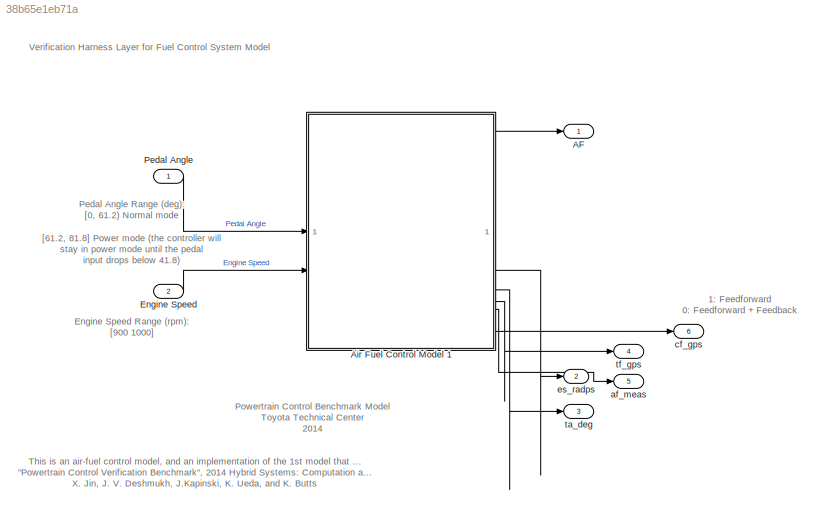
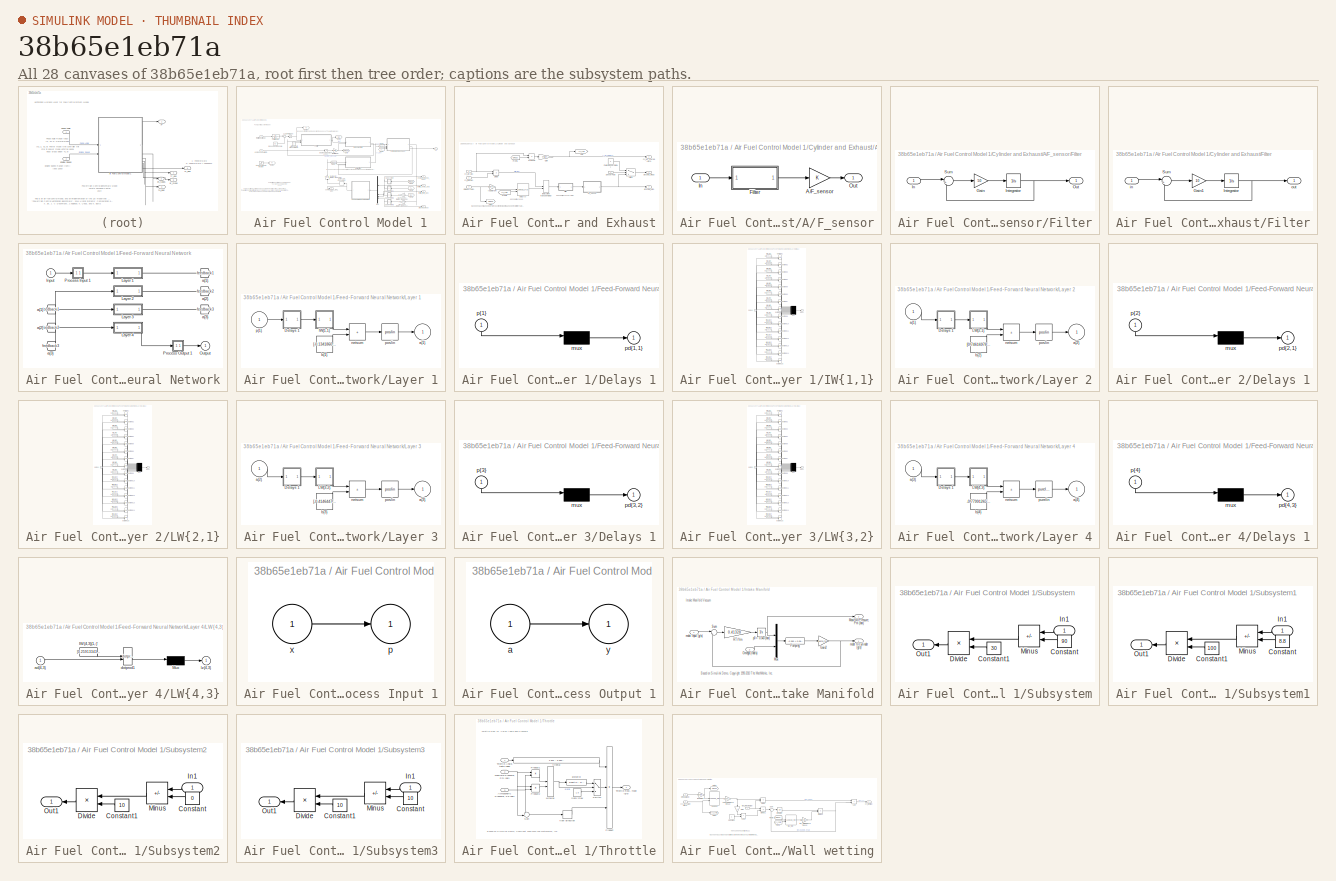
[diagram: thumbnail index - all 28 canvases of the model, root first then tree order]
MODEL slx_38b65e1eb71a
KIND model
CONFIG AbsTol = auto
CONFIG EnableMultiTasking = off
CONFIG FixedStep = auto
CONFIG MaxStep = 0.01
CONFIG MinStep = auto
CONFIG RelTol = 1e-3
CONFIG SampleTimeConstraint = Unconstrained
CONFIG Solver = ode15s
CONFIG SolverMode = SingleTasking
CONFIG SolverName = ode15s
CONFIG StartTime = 0.0
CONFIG StopTime = T
BLOCK [Outport] AF
  VectorParamsAs1DForOutWhenUnconnected = off
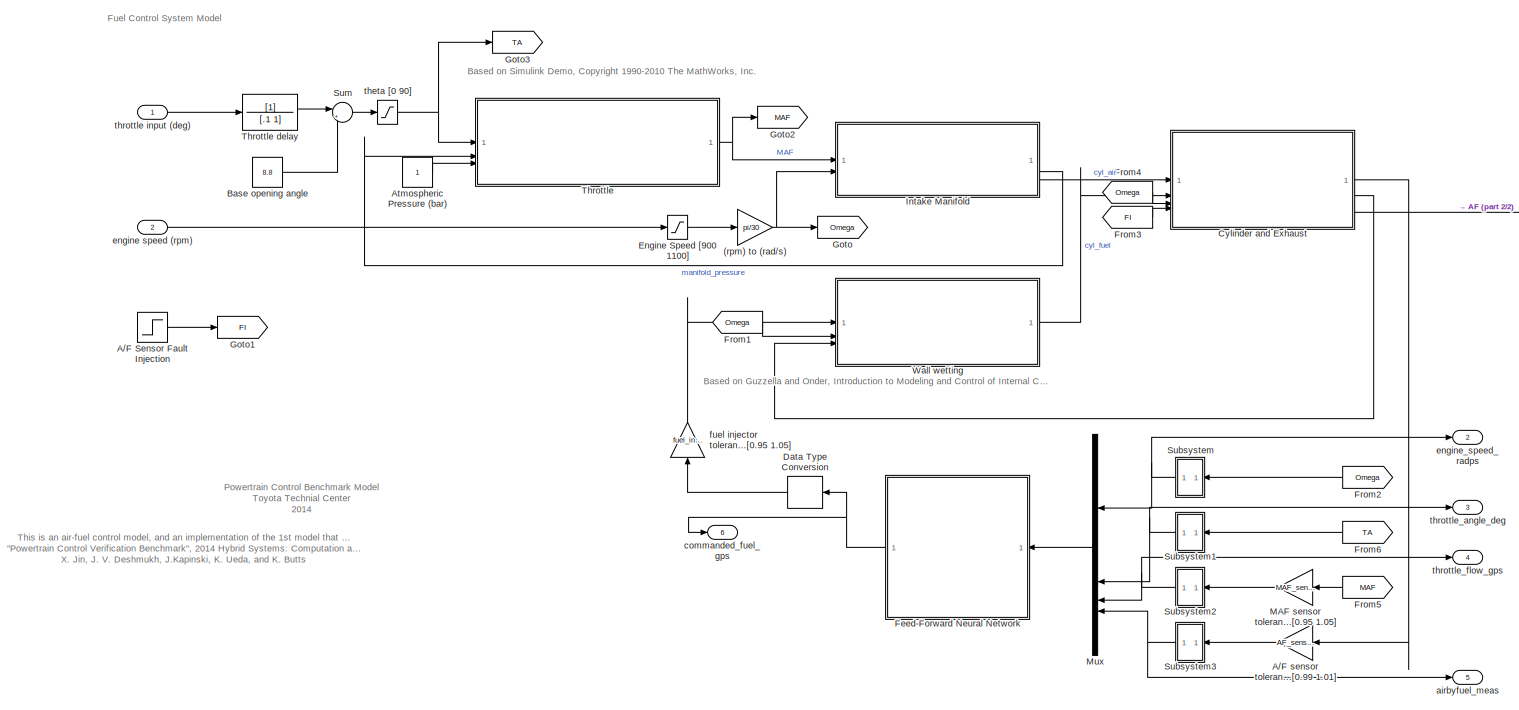
[diagram: Air Fuel Control Model 1 - part 1/2, most of the canvas]
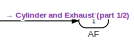
[diagram: Air Fuel Control Model 1 - part 2/2, top right region]
BLOCK [SubSystem] Air Fuel Control Model 1
  Priority = 1
  TreatAsAtomicUnit = on
BLOCK [Gain] Air Fuel Control Model 1/(rpm) to (rad//s)
  Gain = pi/30
BLOCK [Step] Air Fuel Control Model 1/A//F Sensor Fault Injection
  AttributesFormatString = 1: Failure\n0: Normal
  SampleTime = 0
  Time = fault_time
BLOCK [Gain] Air Fuel Control Model 1/A//F sensor tolerance [0.99 1.01]
  Gain = AF_sensor_tol
BLOCK [Outport] Air Fuel Control Model 1/AF
  VectorParamsAs1DForOutWhenUnconnected = off
BLOCK [Constant] Air Fuel Control Model 1/Atmospheric Pressure (bar)
BLOCK [Constant] Air Fuel Control Model 1/Base opening angle
  Value = 8.8
BLOCK [SubSystem] Air Fuel Control Model 1/Cylinder and Exhaust
BLOCK [SubSystem] Air Fuel Control Model 1/Cylinder and Exhaust/A//F_sensor
BLOCK [Gain] Air Fuel Control Model 1/Cylinder and Exhaust/A//F_sensor/A//F_sensor
  OutDataTypeStr = double
BLOCK [SubSystem] Air Fuel Control Model 1/Cylinder and Exhaust/A//F_sensor/Filter
BLOCK [Gain] Air Fuel Control Model 1/Cylinder and Exhaust/A//F_sensor/Filter/Gain
  Gain = 50
BLOCK [Inport] Air Fuel Control Model 1/Cylinder and Exhaust/A//F_sensor/Filter/In
BLOCK [Integrator] Air Fuel Control Model 1/Cylinder and Exhaust/A//F_sensor/Filter/Integrator
  InitialCondition = 14.7
BLOCK [Outport] Air Fuel Control Model 1/Cylinder and Exhaust/A//F_sensor/Filter/Out
  VectorParamsAs1DForOutWhenUnconnected = off
BLOCK [Sum] Air Fuel Control Model 1/Cylinder and Exhaust/A//F_sensor/Filter/Sum
  Inputs = |+-
BLOCK [Inport] Air Fuel Control Model 1/Cylinder and Exhaust/A//F_sensor/In
BLOCK [Outport] Air Fuel Control Model 1/Cylinder and Exhaust/A//F_sensor/Out
  VectorParamsAs1DForOutWhenUnconnected = off
BLOCK [Product] Air Fuel Control Model 1/Cylinder and Exhaust/Divide
  Inputs = */
BLOCK [Constant] Air Fuel Control Model 1/Cylinder and Exhaust/FaultySensorOutput
  Value = -1
BLOCK [SubSystem] Air Fuel Control Model 1/Cylinder and Exhaust/Filter
BLOCK [Gain] Air Fuel Control Model 1/Cylinder and Exhaust/Filter/Gain1
  Gain = 10
BLOCK [Integrator] Air Fuel Control Model 1/Cylinder and Exhaust/Filter/Integrator
  InitialCondition = 14.7
BLOCK [Sum] Air Fuel Control Model 1/Cylinder and Exhaust/Filter/Sum
  Inputs = |+-
BLOCK [Inport] Air Fuel Control Model 1/Cylinder and Exhaust/Filter/in
BLOCK [Outport] Air Fuel Control Model 1/Cylinder and Exhaust/Filter/out
  VectorParamsAs1DForOutWhenUnconnected = off
BLOCK [From] Air Fuel Control Model 1/Cylinder and Exhaust/From1
  GotoTag = Omega
BLOCK [From] Air Fuel Control Model 1/Cylinder and Exhaust/From3
  GotoTag = cyl_chrg
BLOCK [Gain] Air Fuel Control Model 1/Cylinder and Exhaust/Gain
  Gain = 4*pi/4
BLOCK [Goto] Air Fuel Control Model 1/Cylinder and Exhaust/Goto
  GotoTag = cyl_chrg
BLOCK [Goto] Air Fuel Control Model 1/Cylinder and Exhaust/Goto1
  GotoTag = Omega
BLOCK [Inport] Air Fuel Control Model 1/Cylinder and Exhaust/Omega (rad//s)
  Port = 3
BLOCK [Product] Air Fuel Control Model 1/Cylinder and Exhaust/Product1
  Inputs = */
  RndMeth = Zero
BLOCK [Inport] Air Fuel Control Model 1/Cylinder and Exhaust/SensorFault
  Port = 4
BLOCK [Switch] Air Fuel Control Model 1/Cylinder and Exhaust/Switch
  InputSameDT = off
  SaturateOnIntegerOverflow = off
  Threshold = 0.5
BLOCK [Outport] Air Fuel Control Model 1/Cylinder and Exhaust/airbyfue_meas
  VectorParamsAs1DForOutWhenUnconnected = off
BLOCK [Outport] Air Fuel Control Model 1/Cylinder and Exhaust/airbyfuel_mon 
  Port = 3
  VectorParamsAs1DForOutWhenUnconnected = off
BLOCK [Inport] Air Fuel Control Model 1/Cylinder and Exhaust/cyl_air (g//s)
BLOCK [Outport] Air Fuel Control Model 1/Cylinder and Exhaust/cyl_air_charge (g//cyl)
  Port = 2
  VectorParamsAs1DForOutWhenUnconnected = off
BLOCK [Inport] Air Fuel Control Model 1/Cylinder and Exhaust/cyl_fuel (g//s)
  Port = 2
BLOCK [Lookup_n-D] Air Fuel Control Model 1/Cylinder and Exhaust/delay (s)
  BreakpointsForDimension1 = [800,1000,1500,2000,3000]
  BreakpointsForDimension2 = [0.05,0.15,0.2,0.25]
  InputPortMap = u0,u1
  RndMeth = Simplest
  Table = reshape([0.8,0.6,0.4,0.3,0.2,0.4,0.3,0.2,0.2,0.2,0.3,0.25,0.2,0.2,0.2,0.25,0.2,0.2,0.2,0.2],5,4)
  UseLastTableValue = on
BLOCK [VariableTransportDelay] Air Fuel Control Model 1/Cylinder and Exhaust/fuel system transport delay
  InitialOutput = 14.7
  MaximumDelay = 10
  MaximumPoints = 20480
  VariableDelayType = Variable transport delay
BLOCK [Gain] Air Fuel Control Model 1/Cylinder and Exhaust/rad//s to rpm
  Gain = 60/(2*pi)
BLOCK [DataTypeConversion] Air Fuel Control Model 1/Data Type Conversion
  OutDataTypeStr = double
  RndMeth = Floor
  SaturateOnIntegerOverflow = off
BLOCK [Saturate] Air Fuel Control Model 1/Engine Speed [900 1100]
  LowerLimit = 900
  NameLocation = top
  UpperLimit = 1100
BLOCK [SubSystem] Air Fuel Control Model 1/Feed-Forward Neural Network
BLOCK [From] Air Fuel Control Model 1/Feed-Forward Neural Network/ a{1} 
  GotoTag = feedback1
BLOCK [From] Air Fuel Control Model 1/Feed-Forward Neural Network/ a{2} 
  GotoTag = feedback2
BLOCK [From] Air Fuel Control Model 1/Feed-Forward Neural Network/ a{3} 
  GotoTag = feedback3
BLOCK [Inport] Air Fuel Control Model 1/Feed-Forward Neural Network/Input
  PortDimensions = 4
BLOCK [SubSystem] Air Fuel Control Model 1/Feed-Forward Neural Network/Layer 1
BLOCK [SubSystem] Air Fuel Control Model 1/Feed-Forward Neural Network/Layer 1/Delays 1
BLOCK [Mux] Air Fuel Control Model 1/Feed-Forward Neural Network/Layer 1/Delays 1/mux
  Inputs = 1
BLOCK [Outport] Air Fuel Control Model 1/Feed-Forward Neural Network/Layer 1/Delays 1/pd{1,1}
BLOCK [Inport] Air Fuel Control Model 1/Feed-Forward Neural Network/Layer 1/Delays 1/p{1}
  NameLocation = left
  PortDimensions = 4
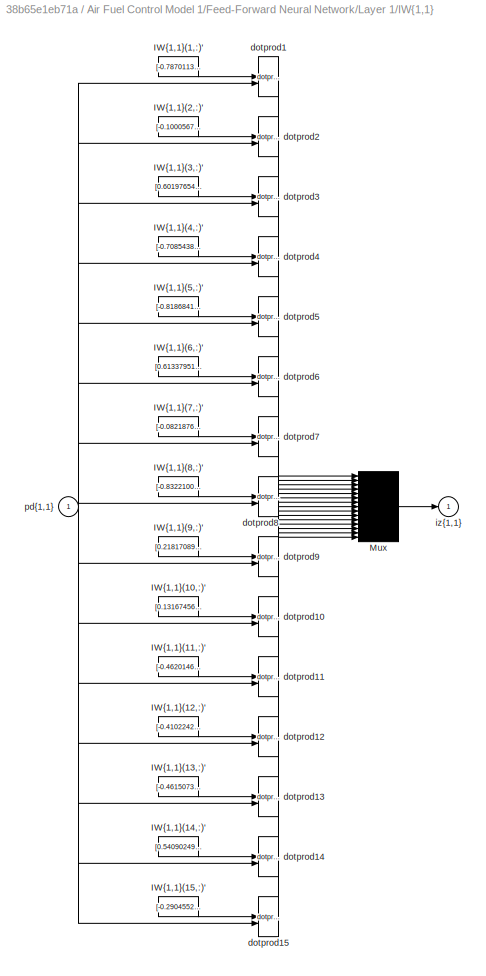
BLOCK [SubSystem] Air Fuel Control Model 1/Feed-Forward Neural Network/Layer 1/IW{1,1}
BLOCK [Constant] Air Fuel Control Model 1/Feed-Forward Neural Network/Layer 1/IW{1,1}/IW{1,1}(1,:)'
  Value = [-0.78701133612833729102931101806461811065673828125;0.4562125433538788410459119404549710452556610107421875;0.103443961303550491237501773866824805736541748046875;-0.87090975855816576967072251136414706707000732421875]
BLOCK [Constant] Air Fuel Control Model 1/Feed-Forward Neural Network/Layer 1/IW{1,1}/IW{1,1}(10,:)'
  Value = [0.1316745698608274839358500685193575918674468994140625;-0.590260013532426963678290121606551110744476318359375;-0.3998189095753179600478688371367752552032470703125;-0.5365704410840212990052577879396267235279083251953125]
BLOCK [Constant] Air Fuel Control Model 1/Feed-Forward Neural Network/Layer 1/IW{1,1}/IW{1,1}(11,:)'
  Value = [-0.462014681196543097740914163296110928058624267578125;0.51133904652220307784915576121420599520206451416015625;-0.66879769313657089213620565715245902538299560546875;-0.6467322154811749879144144870224408805370330810546875]
BLOCK [Constant] Air Fuel Control Model 1/Feed-Forward Neural Network/Layer 1/IW{1,1}/IW{1,1}(12,:)'
  Value = [-0.410224207999659806755943236566963605582714080810546875;0.70720353904919119880645439479849301278591156005859375;0.80645530625370087651759831715025939047336578369140625;-0.267408894004542208033825545498984865844249725341796875]
BLOCK [Constant] Air Fuel Control Model 1/Feed-Forward Neural Network/Layer 1/IW{1,1}/IW{1,1}(13,:)'
  Value = [-0.46150739320623734851523067845846526324748992919921875;-0.56246161152367613045299776786123402416706085205078125;0.1440316457686673101701302357469103299081325531005859375;0.0717413994341347949212917001204914413392543792724609375]
BLOCK [Constant] Air Fuel Control Model 1/Feed-Forward Neural Network/Layer 1/IW{1,1}/IW{1,1}(14,:)'
  Value = [0.540902498896305150566377051291055977344512939453125;-0.3946687621098747822401264784275554120540618896484375;-0.828527723309283370412003932869993150234222412109375;-0.26092162053918865893820111523382365703582763671875]
BLOCK [Constant] Air Fuel Control Model 1/Feed-Forward Neural Network/Layer 1/IW{1,1}/IW{1,1}(15,:)'
  Value = [-0.2904552992418854007183881549281068146228790283203125;-0.4042862767652850575217371442704461514949798583984375;0.601613960576170114791239029727876186370849609375;-0.7227324066346338948818583958200179040431976318359375]
BLOCK [Constant] Air Fuel Control Model 1/Feed-Forward Neural Network/Layer 1/IW{1,1}/IW{1,1}(2,:)'
  Value = [-0.100056771915986331134007514265249483287334442138671875;0.10714570814939804177523541284244856797158718109130859375;0.307562614266350176084330314552062191069126129150390625;-0.2237044110136652275144797386019490659236907958984375]
BLOCK [Constant] Air Fuel Control Model 1/Feed-Forward Neural Network/Layer 1/IW{1,1}/IW{1,1}(3,:)'
  Value = [0.60197654953174861702791531570255756378173828125;-0.51415814467490594807941306498833000659942626953125;0.5874340640427975213100353357731364667415618896484375;0.104830605847380631256982042032177560031414031982421875]
BLOCK [Constant] Air Fuel Control Model 1/Feed-Forward Neural Network/Layer 1/IW{1,1}/IW{1,1}(4,:)'
  Value = [-0.70854381198763716209754193187109194695949554443359375;-0.08015982054196145456526068073799251578748226165771484375;-0.309013340172062000998920439087669365108013153076171875;0.365718269679543794836718006990849971771240234375]
BLOCK [Constant] Air Fuel Control Model 1/Feed-Forward Neural Network/Layer 1/IW{1,1}/IW{1,1}(5,:)'
  Value = [-0.818684130507549401301048419554717838764190673828125;-0.1035428848227202269782765142736025154590606689453125;-0.5814838066046359443816982093267142772674560546875;-0.0206918929987935928949127628584392368793487548828125]
BLOCK [Constant] Air Fuel Control Model 1/Feed-Forward Neural Network/Layer 1/IW{1,1}/IW{1,1}(6,:)'
  Value = [0.613379519958239693977475326391868293285369873046875;0.1853513210456353699218112751623266376554965972900390625;0.59639818288416257541229015259887091815471649169921875;-0.57312054050384142467322590164258144795894622802734375]
BLOCK [Constant] Air Fuel Control Model 1/Feed-Forward Neural Network/Layer 1/IW{1,1}/IW{1,1}(7,:)'
  Value = [-0.0821876544681365839295494879479520022869110107421875;-0.924648825964105025576600382919423282146453857421875;-0.97162497108685652591475445660762488842010498046875;-0.2143981786704600711601642615278251469135284423828125]
BLOCK [Constant] Air Fuel Control Model 1/Feed-Forward Neural Network/Layer 1/IW{1,1}/IW{1,1}(8,:)'
  Value = [-0.8322100781014512005384631265769712626934051513671875;0.756808648165334663104886203655041754245758056640625;-0.5740829185972007309146647457964718341827392578125;0.319655064111825593098359377108863554894924163818359375]
BLOCK [Constant] Air Fuel Control Model 1/Feed-Forward Neural Network/Layer 1/IW{1,1}/IW{1,1}(9,:)'
  Value = [0.218170897994887369453209657876868732273578643798828125;-0.399711730374496643225512571007129736244678497314453125;0.509493936183935236527986489818431437015533447265625;0.387891270540356603024889636799343861639499664306640625]
BLOCK [Mux] Air Fuel Control Model 1/Feed-Forward Neural Network/Layer 1/IW{1,1}/Mux
  Inputs = 15
BLOCK [Reference] Air Fuel Control Model 1/Feed-Forward Neural Network/Layer 1/IW{1,1}/dotprod1  REF=neural/Weight Functions/dotprod
  SourceBlock = neural/Weight Functions/dotprod
  SourceType = DOTPROD
BLOCK [Reference] Air Fuel Control Model 1/Feed-Forward Neural Network/Layer 1/IW{1,1}/dotprod10  REF=neural/Weight Functions/dotprod
  SourceBlock = neural/Weight Functions/dotprod
  SourceType = DOTPROD
BLOCK [Reference] Air Fuel Control Model 1/Feed-Forward Neural Network/Layer 1/IW{1,1}/dotprod11  REF=neural/Weight Functions/dotprod
  SourceBlock = neural/Weight Functions/dotprod
  SourceType = DOTPROD
BLOCK [Reference] Air Fuel Control Model 1/Feed-Forward Neural Network/Layer 1/IW{1,1}/dotprod12  REF=neural/Weight Functions/dotprod
  SourceBlock = neural/Weight Functions/dotprod
  SourceType = DOTPROD
BLOCK [Reference] Air Fuel Control Model 1/Feed-Forward Neural Network/Layer 1/IW{1,1}/dotprod13  REF=neural/Weight Functions/dotprod
  SourceBlock = neural/Weight Functions/dotprod
  SourceType = DOTPROD
BLOCK [Reference] Air Fuel Control Model 1/Feed-Forward Neural Network/Layer 1/IW{1,1}/dotprod14  REF=neural/Weight Functions/dotprod
  SourceBlock = neural/Weight Functions/dotprod
  SourceType = DOTPROD
BLOCK [Reference] Air Fuel Control Model 1/Feed-Forward Neural Network/Layer 1/IW{1,1}/dotprod15  REF=neural/Weight Functions/dotprod
  SourceBlock = neural/Weight Functions/dotprod
  SourceType = DOTPROD
BLOCK [Reference] Air Fuel Control Model 1/Feed-Forward Neural Network/Layer 1/IW{1,1}/dotprod2  REF=neural/Weight Functions/dotprod
  SourceBlock = neural/Weight Functions/dotprod
  SourceType = DOTPROD
BLOCK [Reference] Air Fuel Control Model 1/Feed-Forward Neural Network/Layer 1/IW{1,1}/dotprod3  REF=neural/Weight Functions/dotprod
  SourceBlock = neural/Weight Functions/dotprod
  SourceType = DOTPROD
BLOCK [Reference] Air Fuel Control Model 1/Feed-Forward Neural Network/Layer 1/IW{1,1}/dotprod4  REF=neural/Weight Functions/dotprod
  SourceBlock = neural/Weight Functions/dotprod
  SourceType = DOTPROD
BLOCK [Reference] Air Fuel Control Model 1/Feed-Forward Neural Network/Layer 1/IW{1,1}/dotprod5  REF=neural/Weight Functions/dotprod
  SourceBlock = neural/Weight Functions/dotprod
  SourceType = DOTPROD
BLOCK [Reference] Air Fuel Control Model 1/Feed-Forward Neural Network/Layer 1/IW{1,1}/dotprod6  REF=neural/Weight Functions/dotprod
  SourceBlock = neural/Weight Functions/dotprod
  SourceType = DOTPROD
BLOCK [Reference] Air Fuel Control Model 1/Feed-Forward Neural Network/Layer 1/IW{1,1}/dotprod7  REF=neural/Weight Functions/dotprod
  SourceBlock = neural/Weight Functions/dotprod
  SourceType = DOTPROD
BLOCK [Reference] Air Fuel Control Model 1/Feed-Forward Neural Network/Layer 1/IW{1,1}/dotprod8  REF=neural/Weight Functions/dotprod
  SourceBlock = neural/Weight Functions/dotprod
  SourceType = DOTPROD
BLOCK [Reference] Air Fuel Control Model 1/Feed-Forward Neural Network/Layer 1/IW{1,1}/dotprod9  REF=neural/Weight Functions/dotprod
  SourceBlock = neural/Weight Functions/dotprod
  SourceType = DOTPROD
BLOCK [Outport] Air Fuel Control Model 1/Feed-Forward Neural Network/Layer 1/IW{1,1}/iz{1,1}
BLOCK [Inport] Air Fuel Control Model 1/Feed-Forward Neural Network/Layer 1/IW{1,1}/pd{1,1}
  PortDimensions = 4
BLOCK [Outport] Air Fuel Control Model 1/Feed-Forward Neural Network/Layer 1/a{1}
  InitialOutput = [0;0;0;0;0;0;0;0;0;0;0;0;0;0;0]
BLOCK [Constant] Air Fuel Control Model 1/Feed-Forward Neural Network/Layer 1/b{1}
  Value = [-0.1341860486186956524790048206341452896595001220703125;0.7370787647564469580174773000180721282958984375;-0.66689575420149249662671309124561958014965057373046875;0.78146657627934412726489199485513381659984588623046875;-0.11090578560506525462869831244461238384246826171875;0.7399251551739325361012333814869634807109832763671875;-0.16662136516219039350517050479538738727569580078125;0.6245379936553544...<+421ch>
BLOCK [Sum] Air Fuel Control Model 1/Feed-Forward Neural Network/Layer 1/netsum
  IconShape = rectangular
  InputSameDT = on
  Inputs = 2
  OutDataTypeStr = Inherit: Same as first input
  SaturateOnIntegerOverflow = on
BLOCK [Reference] Air Fuel Control Model 1/Feed-Forward Neural Network/Layer 1/poslin  REF=neural/Transfer Functions/poslin
  SourceBlock = neural/Transfer Functions/poslin
  SourceType = POSLIN
BLOCK [Inport] Air Fuel Control Model 1/Feed-Forward Neural Network/Layer 1/p{1}
  PortDimensions = 4
BLOCK [SubSystem] Air Fuel Control Model 1/Feed-Forward Neural Network/Layer 2
BLOCK [SubSystem] Air Fuel Control Model 1/Feed-Forward Neural Network/Layer 2/Delays 1
BLOCK [Mux] Air Fuel Control Model 1/Feed-Forward Neural Network/Layer 2/Delays 1/mux
  Inputs = 1
BLOCK [Outport] Air Fuel Control Model 1/Feed-Forward Neural Network/Layer 2/Delays 1/pd{2,1}
BLOCK [Inport] Air Fuel Control Model 1/Feed-Forward Neural Network/Layer 2/Delays 1/p{2}
  NameLocation = left
  PortDimensions = 15
BLOCK [SubSystem] Air Fuel Control Model 1/Feed-Forward Neural Network/Layer 2/LW{2,1}
BLOCK [Constant] Air Fuel Control Model 1/Feed-Forward Neural Network/Layer 2/LW{2,1}/IW{2,1}(1,:)'
  Value = [0.1468658058110374753368887468241155147552490234375;-0.79986890826566170442646352967130951583385467529296875;-0.31412633700742986775367171503603458404541015625;-0.00332579596645567361623552216087773558683693408966064453125;0.1312237814313217398876076913438737392425537109375;0.344524720263148787058327116028522141277790069580078125;-0.0408263490105180704148324366542510688304901123046875;-0.19714318...<+434ch>
BLOCK [Constant] Air Fuel Control Model 1/Feed-Forward Neural Network/Layer 2/LW{2,1}/IW{2,1}(10,:)'
  Value = [0.5682971021935003808067676800419576466083526611328125;-0.7275100622197581134997790286433883011341094970703125;1.4406360212981699220335940481163561344146728515625;-0.7098343326217027016156180252437479794025421142578125;0.3745290668992009575077872796100564301013946533203125;-0.0614067373898913027030488365198834799230098724365234375;0.964924509608335423394009922049008309841156005859375;-1.327386514...<+434ch>
BLOCK [Constant] Air Fuel Control Model 1/Feed-Forward Neural Network/Layer 2/LW{2,1}/IW{2,1}(11,:)'
  Value = [-0.2256452198759715255249602705589495599269866943359375;0.727956654138967262923642920213751494884490966796875;-0.5453793247586904424650811051833443343639373779296875;0.547967139390781898811155770090408623218536376953125;-0.1828759723086506028266740031540393829345703125;0.9374135951140996070307664922438561916351318359375;0.87270401334910641111264339997433125972747802734375;0.8530370298505807191702...<+422ch>
BLOCK [Constant] Air Fuel Control Model 1/Feed-Forward Neural Network/Layer 2/LW{2,1}/IW{2,1}(12,:)'
  Value = [0.41333293646864799342210972099564969539642333984375;-0.8616022116206336622923345203162170946598052978515625;-0.348616050190197535041392029597773216664791107177734375;-0.5692780055831174745861744668218307197093963623046875;0.9529144783762959480810650347848422825336456298828125;-1.0241829268729427671047460535191930830478668212890625;0.5831636473464032466296202983357943594455718994140625;0.49930661...<+430ch>
BLOCK [Constant] Air Fuel Control Model 1/Feed-Forward Neural Network/Layer 2/LW{2,1}/IW{2,1}(13,:)'
  Value = [-0.1934656038895019580792222768650390207767486572265625;-0.2390404906948966068380713068108889274299144744873046875;-0.1199124406723394986595820910224574618041515350341796875;0.263449521186924773274995459360070526599884033203125;0.4440977442440028344350366751314140856266021728515625;0.53872301524054255761342346886522136628627777099609375;-0.2115765017478363763103743622195906937122344970703125;-0.6...<+437ch>
BLOCK [Constant] Air Fuel Control Model 1/Feed-Forward Neural Network/Layer 2/LW{2,1}/IW{2,1}(14,:)'
  Value = [0.0600992664475967774961873146821744740009307861328125;-0.65050183753509538409076640164130367338657379150390625;1.362085994538364541739383639651350677013397216796875;0.042474272203300279804327743704561726190149784088134765625;-0.2568578517627091439834430275368504226207733154296875;0.81744135101609993743210225147777236998081207275390625;-0.2498833666170330314315606301533989608287811279296875;-0.10...<+449ch>
BLOCK [Constant] Air Fuel Control Model 1/Feed-Forward Neural Network/Layer 2/LW{2,1}/IW{2,1}(15,:)'
  Value = [0.6978075346578351823012553722946904599666595458984375;-0.73662106818013228792807467470993287861347198486328125;-1.1123650153279764918323735400917939841747283935546875;-0.11030835599876363806171042369896895252168178558349609375;0.734200051032391609595606496441178023815155029296875;-0.1876468311379226872048775476287119090557098388671875;0.7184828013258843792954166929121129214763641357421875;0.6001...<+441ch>
BLOCK [Constant] Air Fuel Control Model 1/Feed-Forward Neural Network/Layer 2/LW{2,1}/IW{2,1}(2,:)'
  Value = [0.6249525164608675797950354535714723169803619384765625;0.412890681297754802425714615310425870120525360107421875;-0.2159788554806470750602187536060228012502193450927734375;0.3508923949942845954552694820449687540531158447265625;-0.1422183036643251963226930456585250794887542724609375;0.612312898614546075037878836155869066715240478515625;-0.48507316554088220073026604950428009033203125;-0.648789994413...<+433ch>
BLOCK [Constant] Air Fuel Control Model 1/Feed-Forward Neural Network/Layer 2/LW{2,1}/IW{2,1}(3,:)'
  Value = [0.7107348580942822735551089863292872905731201171875;-0.342239153986161337428484330303035676479339599609375;-0.19023870928318320494554427568800747394561767578125;-0.8599175367517801760186557658016681671142578125;0.32990234960410713682676941971294581890106201171875;0.000120624052140971826929671806283295154571533203125;-0.5464970238293351822989052379853092133998870849609375;0.40146625324583662397515...<+402ch>
BLOCK [Constant] Air Fuel Control Model 1/Feed-Forward Neural Network/Layer 2/LW{2,1}/IW{2,1}(4,:)'
  Value = [-0.7606968030107481570922800528933294117450714111328125;-0.7535509674089102549743302006390877068042755126953125;-0.0455651968607446722359100022003985941410064697265625;-0.4725010400413507394290490992716513574123382568359375;0.7174803353217551471487922754022292792797088623046875;-0.3329299845408628666376671390025876462459564208984375;0.6842857552629875161898098667734302580356597900390625;-0.481892...<+430ch>
BLOCK [Constant] Air Fuel Control Model 1/Feed-Forward Neural Network/Layer 2/LW{2,1}/IW{2,1}(5,:)'
  Value = [0.266715266696730513018565034144558012485504150390625;-0.332533963167412849326609602940152399241924285888671875;0.46985499617614345790883589870645664632320404052734375;-0.76651164888252265594559275996289215981960296630859375;-0.027119185528958755782014122814871370792388916015625;0.70201174892076012579167354488163255155086517333984375;-0.4255423106365061602929245054838247597217559814453125;-0.2801...<+433ch>
BLOCK [Constant] Air Fuel Control Model 1/Feed-Forward Neural Network/Layer 2/LW{2,1}/IW{2,1}(6,:)'
  Value = [0.5205809332657251875531301266164518892765045166015625;0.369459481161023450823677194421179592609405517578125;0.6135047231561936431631920640938915312290191650390625;0.059136244425769035615303437225520610809326171875;0.374148337822167054156352605787105858325958251953125;-0.9186599140957822928754694657982327044010162353515625;-0.599107887517563053592084543197415769100189208984375;-0.4882174416335660...<+416ch>
BLOCK [Constant] Air Fuel Control Model 1/Feed-Forward Neural Network/Layer 2/LW{2,1}/IW{2,1}(7,:)'
  Value = [-0.695442869286326814659560113796032965183258056640625;-0.881550976945969733122865363839082419872283935546875;0.8093922409587241961759218611405231058597564697265625;0.09552673732521850535892582456654054112732410430908203125;0.4068000332342711633515364155755378305912017822265625;0.37250243473358002344042461118078790605068206787109375;0.6941789590380762486887533668777905404567718505859375;0.6390292...<+441ch>
BLOCK [Constant] Air Fuel Control Model 1/Feed-Forward Neural Network/Layer 2/LW{2,1}/IW{2,1}(8,:)'
  Value = [0.335702721066147180550842676893807947635650634765625;-0.6234135387209367440419782724347896873950958251953125;0.05600270005710324128234134377635200507938861846923828125;0.738664641377198449845309369266033172607421875;-0.8518457958148861752789571255561895668506622314453125;0.1699491832068246999210003878033603541553020477294921875;0.9024625642331134400819792062975466251373291015625;0.18581324428566...<+436ch>
BLOCK [Constant] Air Fuel Control Model 1/Feed-Forward Neural Network/Layer 2/LW{2,1}/IW{2,1}(9,:)'
  Value = [0.8596903241516711258185523547581396996974945068359375;0.5446400156727084773677916018641553819179534912109375;-8.868221093991540016077124164439737796783447265625;-0.63033703012778452556830188768799416720867156982421875;0.2101733469269653209465786858345381915569305419921875;0.6476803619839068826280481516732834279537200927734375;-0.884327548513141881159071999718435108661651611328125;0.4502832030820...<+432ch>
BLOCK [Mux] Air Fuel Control Model 1/Feed-Forward Neural Network/Layer 2/LW{2,1}/Mux
  Inputs = 15
BLOCK [Inport] Air Fuel Control Model 1/Feed-Forward Neural Network/Layer 2/LW{2,1}/ad{2,1}
  PortDimensions = 15
BLOCK [Reference] Air Fuel Control Model 1/Feed-Forward Neural Network/Layer 2/LW{2,1}/dotprod1  REF=neural/Weight Functions/dotprod
  SourceBlock = neural/Weight Functions/dotprod
  SourceType = DOTPROD
BLOCK [Reference] Air Fuel Control Model 1/Feed-Forward Neural Network/Layer 2/LW{2,1}/dotprod10  REF=neural/Weight Functions/dotprod
  SourceBlock = neural/Weight Functions/dotprod
  SourceType = DOTPROD
BLOCK [Reference] Air Fuel Control Model 1/Feed-Forward Neural Network/Layer 2/LW{2,1}/dotprod11  REF=neural/Weight Functions/dotprod
  SourceBlock = neural/Weight Functions/dotprod
  SourceType = DOTPROD
BLOCK [Reference] Air Fuel Control Model 1/Feed-Forward Neural Network/Layer 2/LW{2,1}/dotprod12  REF=neural/Weight Functions/dotprod
  SourceBlock = neural/Weight Functions/dotprod
  SourceType = DOTPROD
BLOCK [Reference] Air Fuel Control Model 1/Feed-Forward Neural Network/Layer 2/LW{2,1}/dotprod13  REF=neural/Weight Functions/dotprod
  SourceBlock = neural/Weight Functions/dotprod
  SourceType = DOTPROD
BLOCK [Reference] Air Fuel Control Model 1/Feed-Forward Neural Network/Layer 2/LW{2,1}/dotprod14  REF=neural/Weight Functions/dotprod
  SourceBlock = neural/Weight Functions/dotprod
  SourceType = DOTPROD
BLOCK [Reference] Air Fuel Control Model 1/Feed-Forward Neural Network/Layer 2/LW{2,1}/dotprod15  REF=neural/Weight Functions/dotprod
  SourceBlock = neural/Weight Functions/dotprod
  SourceType = DOTPROD
BLOCK [Reference] Air Fuel Control Model 1/Feed-Forward Neural Network/Layer 2/LW{2,1}/dotprod2  REF=neural/Weight Functions/dotprod
  SourceBlock = neural/Weight Functions/dotprod
  SourceType = DOTPROD
BLOCK [Reference] Air Fuel Control Model 1/Feed-Forward Neural Network/Layer 2/LW{2,1}/dotprod3  REF=neural/Weight Functions/dotprod
  SourceBlock = neural/Weight Functions/dotprod
  SourceType = DOTPROD
BLOCK [Reference] Air Fuel Control Model 1/Feed-Forward Neural Network/Layer 2/LW{2,1}/dotprod4  REF=neural/Weight Functions/dotprod
  SourceBlock = neural/Weight Functions/dotprod
  SourceType = DOTPROD
BLOCK [Reference] Air Fuel Control Model 1/Feed-Forward Neural Network/Layer 2/LW{2,1}/dotprod5  REF=neural/Weight Functions/dotprod
  SourceBlock = neural/Weight Functions/dotprod
  SourceType = DOTPROD
BLOCK [Reference] Air Fuel Control Model 1/Feed-Forward Neural Network/Layer 2/LW{2,1}/dotprod6  REF=neural/Weight Functions/dotprod
  SourceBlock = neural/Weight Functions/dotprod
  SourceType = DOTPROD
BLOCK [Reference] Air Fuel Control Model 1/Feed-Forward Neural Network/Layer 2/LW{2,1}/dotprod7  REF=neural/Weight Functions/dotprod
  SourceBlock = neural/Weight Functions/dotprod
  SourceType = DOTPROD
BLOCK [Reference] Air Fuel Control Model 1/Feed-Forward Neural Network/Layer 2/LW{2,1}/dotprod8  REF=neural/Weight Functions/dotprod
  SourceBlock = neural/Weight Functions/dotprod
  SourceType = DOTPROD
BLOCK [Reference] Air Fuel Control Model 1/Feed-Forward Neural Network/Layer 2/LW{2,1}/dotprod9  REF=neural/Weight Functions/dotprod
  SourceBlock = neural/Weight Functions/dotprod
  SourceType = DOTPROD
BLOCK [Outport] Air Fuel Control Model 1/Feed-Forward Neural Network/Layer 2/LW{2,1}/lz{2,1}
BLOCK [Inport] Air Fuel Control Model 1/Feed-Forward Neural Network/Layer 2/a{1} 
  PortDimensions = 15
BLOCK [Outport] Air Fuel Control Model 1/Feed-Forward Neural Network/Layer 2/a{2}
  InitialOutput = [0;0;0;0;0;0;0;0;0;0;0;0;0;0;0]
BLOCK [Constant] Air Fuel Control Model 1/Feed-Forward Neural Network/Layer 2/b{2}
  Value = [0.74616978455469162856417142393183894455432891845703125;-0.08187734854941293438645999458458391018211841583251953125;-0.8287727540234717249489904133952222764492034912109375;-0.6601016648521829122131521216942928731441497802734375;0.41745320475377278857109786258661188185214996337890625;-0.6908077700776520391201529491809196770191192626953125;0.60056438635976350237655196906416676938533782958984375;0.9...<+445ch>
BLOCK [Sum] Air Fuel Control Model 1/Feed-Forward Neural Network/Layer 2/netsum
  IconShape = rectangular
  InputSameDT = on
  Inputs = 2
  OutDataTypeStr = Inherit: Same as first input
  SaturateOnIntegerOverflow = on
BLOCK [Reference] Air Fuel Control Model 1/Feed-Forward Neural Network/Layer 2/poslin  REF=neural/Transfer Functions/poslin
  SourceBlock = neural/Transfer Functions/poslin
  SourceType = POSLIN
BLOCK [SubSystem] Air Fuel Control Model 1/Feed-Forward Neural Network/Layer 3
BLOCK [SubSystem] Air Fuel Control Model 1/Feed-Forward Neural Network/Layer 3/Delays 1
BLOCK [Mux] Air Fuel Control Model 1/Feed-Forward Neural Network/Layer 3/Delays 1/mux
  Inputs = 1
BLOCK [Outport] Air Fuel Control Model 1/Feed-Forward Neural Network/Layer 3/Delays 1/pd{3,2}
BLOCK [Inport] Air Fuel Control Model 1/Feed-Forward Neural Network/Layer 3/Delays 1/p{3}
  NameLocation = left
  PortDimensions = 15
BLOCK [SubSystem] Air Fuel Control Model 1/Feed-Forward Neural Network/Layer 3/LW{3,2}
BLOCK [Constant] Air Fuel Control Model 1/Feed-Forward Neural Network/Layer 3/LW{3,2}/IW{3,2}(1,:)'
  Value = [0.245088375632908306300805634236894547939300537109375;-0.9630654315301534484916601286386139690876007080078125;0.9600091175752567540513382482458837330341339111328125;0.845118910397417710811396318604238331317901611328125;-0.7176582003307065971142719718045555055141448974609375;-0.589273318857662875558389714569784700870513916015625;-0.953421768699953542380853832582943141460418701171875;0.195723632059...<+414ch>
BLOCK [Constant] Air Fuel Control Model 1/Feed-Forward Neural Network/Layer 3/LW{3,2}/IW{3,2}(10,:)'
  Value = [0.73718727630584368615274115654756315052509307861328125;-0.2004073980385996656128355652981554158031940460205078125;0.8725744369771657460432834341190755367279052734375;0.2950234375494618088708875802694819867610931396484375;0.70820415272860881561456380950403399765491485595703125;-0.8684387029046580774860331075615249574184417724609375;-0.15133362262805427622680554122780449688434600830078125;0.512855...<+446ch>
BLOCK [Constant] Air Fuel Control Model 1/Feed-Forward Neural Network/Layer 3/LW{3,2}/IW{3,2}(11,:)'
  Value = [0.481760931953577442587999257739284075796604156494140625;0.1308495322055307219510922323024715296924114227294921875;0.9318956526707997678471429026103578507900238037109375;0.4618391492819784449608278009691275656223297119140625;-0.77317191553957897998117232418735511600971221923828125;-0.7025786881286404383928356764954514801502227783203125;0.036866405706285819421363925130208372138440608978271484375;-...<+428ch>
BLOCK [Constant] Air Fuel Control Model 1/Feed-Forward Neural Network/Layer 3/LW{3,2}/IW{3,2}(12,:)'
  Value = [-0.55531624710789440069191869042697362601757049560546875;-0.84963676770620744083117870104615576565265655517578125;0.2268727209830530000544968061149120330810546875;-0.8786502692251316748439649018109776079654693603515625;0.476458690685954866506079952159780077636241912841796875;0.702457526197160841974209688487462699413299560546875;-0.74048004099400899225003058745642192661762237548828125;-0.215942124...<+431ch>
BLOCK [Constant] Air Fuel Control Model 1/Feed-Forward Neural Network/Layer 3/LW{3,2}/IW{3,2}(13,:)'
  Value = [0.396610205975270968536960936035029590129852294921875;0.4450747945940218830429557783645577728748321533203125;-0.9064537320609000747850814150297082960605621337890625;-0.163812813249240907254034027573652565479278564453125;-0.3703825082072469410121584587614051997661590576171875;0.8023027323506948249587367172352969646453857421875;0.26350475742635826037485458073206245899200439453125;0.5446139368451015...<+423ch>
BLOCK [Constant] Air Fuel Control Model 1/Feed-Forward Neural Network/Layer 3/LW{3,2}/IW{3,2}(14,:)'
  Value = [0.237256128742527661046324283233843743801116943359375;0.9380274187991322065727217704989016056060791015625;0.0866903145212971626420994653017260134220123291015625;0.0578359415262996723328114967443980276584625244140625;0.9294309917431651246744195304927416145801544189453125;-0.8816609086055173793994299558107741177082061767578125;-0.4715985768164510094635488712810911238193511962890625;-0.4607481412015...<+426ch>
BLOCK [Constant] Air Fuel Control Model 1/Feed-Forward Neural Network/Layer 3/LW{3,2}/IW{3,2}(15,:)'
  Value = [0.82910926043546118169302872047410346567630767822265625;0.71055847709559050162653193183359690010547637939453125;0.9487008142226667217755675665102899074554443359375;0.474919090886384065441916391137056052684783935546875;-0.0710109317395639372261229027571971528232097625732421875;-0.19957001056105472258650479489006102085113525390625;-0.51220007739129835844238414210849441587924957275390625;0.802932506...<+431ch>
BLOCK [Constant] Air Fuel Control Model 1/Feed-Forward Neural Network/Layer 3/LW{3,2}/IW{3,2}(2,:)'
  Value = [0.06273353712899344680753443981302552856504917144775390625;0.21838741136412431753655027932836674153804779052734375;0.8207439236663989223785620197304524481296539306640625;-0.736546191755028445413699955679476261138916015625;0.425698497602584657872881734874681569635868072509765625;0.8786358923690469335809893891564570367336273193359375;-0.901476841034734466262534624547697603702545166015625;-0.4657799...<+445ch>
BLOCK [Constant] Air Fuel Control Model 1/Feed-Forward Neural Network/Layer 3/LW{3,2}/IW{3,2}(3,:)'
  Value = [0.433364005051513512256633475772105157375335693359375;0.91843299975869097107050720296683721244335174560546875;-0.6131501670085708344259955993038602173328399658203125;0.888148439859744343038983060978353023529052734375;1.0113064787332870508862470160238444805145263671875;-0.747263229640165338452106880140490829944610595703125;0.3861434377850232468887270442792214453220367431640625;-0.95418754909423764...<+441ch>
BLOCK [Constant] Air Fuel Control Model 1/Feed-Forward Neural Network/Layer 3/LW{3,2}/IW{3,2}(4,:)'
  Value = [-0.8351364511086585284971306464285589754581451416015625;0.1621631799288543174242249733651988208293914794921875;0.5409734433553128329918990857549943029880523681640625;0.2721665852208321467742280219681560993194580078125;-0.771798802527578597931778858765028417110443115234375;-0.070369737464647474922685432829894125461578369140625;-0.1597043763150962636387930615455843508243560791015625;0.8153583337968...<+421ch>
BLOCK [Constant] Air Fuel Control Model 1/Feed-Forward Neural Network/Layer 3/LW{3,2}/IW{3,2}(5,:)'
  Value = [0.288583014054416386873214150909916497766971588134765625;-0.5823159927174847982911387589410878717899322509765625;-0.1205428831065702421909691111068241298198699951171875;0.5718050437108728178969840882928110659122467041015625;-0.05707982322478259706866055012142169289290904998779296875;0.0234614928237093511853572636027820408344268798828125;0.72468308084190702356153224172885529696941375732421875;-0.6...<+446ch>
BLOCK [Constant] Air Fuel Control Model 1/Feed-Forward Neural Network/Layer 3/LW{3,2}/IW{3,2}(6,:)'
  Value = [0.21445134724792414004923557513393461704254150390625;0.899792657956907770966381576727144420146942138671875;-0.281123313723487200377348926849663257598876953125;0.1741749122148050776814898199518211185932159423828125;-0.5183807483678410932270708144642412662506103515625;0.6288552804994032019436644986853934824466705322265625;0.465227198924214768727125601799343712627887725830078125;-0.05884791042707557...<+430ch>
BLOCK [Constant] Air Fuel Control Model 1/Feed-Forward Neural Network/Layer 3/LW{3,2}/IW{3,2}(7,:)'
  Value = [0.84690410926559411830538692811387591063976287841796875;-0.57644694882305314020953801446012221276760101318359375;0.592245801338891819654008941142819821834564208984375;-0.218728148045378656405546280439011752605438232421875;0.3998644107718869467049671584391035139560699462890625;0.0408120069936763751883290751720778644084930419921875;0.364846337384792718250281495784292928874492645263671875;0.78113830...<+438ch>
BLOCK [Constant] Air Fuel Control Model 1/Feed-Forward Neural Network/Layer 3/LW{3,2}/IW{3,2}(8,:)'
  Value = [0.281980296311453992874618279529386200010776519775390625;-0.49098615925635635814927582032396458089351654052734375;0.1501377451791918726797803174122236669063568115234375;-0.43846370282760727121740274014882743358612060546875;-0.3760599355484668393501124228350818157196044921875;0.7102539399932836783335687869112007319927215576171875;0.64505924706654471645350668040919117629528045654296875;0.6807406223...<+435ch>
BLOCK [Constant] Air Fuel Control Model 1/Feed-Forward Neural Network/Layer 3/LW{3,2}/IW{3,2}(9,:)'
  Value = [-0.7795544102685294518551017972640693187713623046875;-0.30086235279490181060424447423429228365421295166015625;0.9389629483296195733288413975969888269901275634765625;0.4652989588579530266798656157334335148334503173828125;0.71002720009645858834090859090792946517467498779296875;0.19849170235196567091406905092298984527587890625;0.09045032559771927493930121499943197704851627349853515625;0.066706787777...<+437ch>
BLOCK [Mux] Air Fuel Control Model 1/Feed-Forward Neural Network/Layer 3/LW{3,2}/Mux
  Inputs = 15
BLOCK [Inport] Air Fuel Control Model 1/Feed-Forward Neural Network/Layer 3/LW{3,2}/ad{3,2}
  PortDimensions = 15
BLOCK [Reference] Air Fuel Control Model 1/Feed-Forward Neural Network/Layer 3/LW{3,2}/dotprod1  REF=neural/Weight Functions/dotprod
  SourceBlock = neural/Weight Functions/dotprod
  SourceType = DOTPROD
BLOCK [Reference] Air Fuel Control Model 1/Feed-Forward Neural Network/Layer 3/LW{3,2}/dotprod10  REF=neural/Weight Functions/dotprod
  SourceBlock = neural/Weight Functions/dotprod
  SourceType = DOTPROD
BLOCK [Reference] Air Fuel Control Model 1/Feed-Forward Neural Network/Layer 3/LW{3,2}/dotprod11  REF=neural/Weight Functions/dotprod
  SourceBlock = neural/Weight Functions/dotprod
  SourceType = DOTPROD
BLOCK [Reference] Air Fuel Control Model 1/Feed-Forward Neural Network/Layer 3/LW{3,2}/dotprod12  REF=neural/Weight Functions/dotprod
  SourceBlock = neural/Weight Functions/dotprod
  SourceType = DOTPROD
BLOCK [Reference] Air Fuel Control Model 1/Feed-Forward Neural Network/Layer 3/LW{3,2}/dotprod13  REF=neural/Weight Functions/dotprod
  SourceBlock = neural/Weight Functions/dotprod
  SourceType = DOTPROD
BLOCK [Reference] Air Fuel Control Model 1/Feed-Forward Neural Network/Layer 3/LW{3,2}/dotprod14  REF=neural/Weight Functions/dotprod
  SourceBlock = neural/Weight Functions/dotprod
  SourceType = DOTPROD
BLOCK [Reference] Air Fuel Control Model 1/Feed-Forward Neural Network/Layer 3/LW{3,2}/dotprod15  REF=neural/Weight Functions/dotprod
  SourceBlock = neural/Weight Functions/dotprod
  SourceType = DOTPROD
BLOCK [Reference] Air Fuel Control Model 1/Feed-Forward Neural Network/Layer 3/LW{3,2}/dotprod2  REF=neural/Weight Functions/dotprod
  SourceBlock = neural/Weight Functions/dotprod
  SourceType = DOTPROD
BLOCK [Reference] Air Fuel Control Model 1/Feed-Forward Neural Network/Layer 3/LW{3,2}/dotprod3  REF=neural/Weight Functions/dotprod
  SourceBlock = neural/Weight Functions/dotprod
  SourceType = DOTPROD
BLOCK [Reference] Air Fuel Control Model 1/Feed-Forward Neural Network/Layer 3/LW{3,2}/dotprod4  REF=neural/Weight Functions/dotprod
  SourceBlock = neural/Weight Functions/dotprod
  SourceType = DOTPROD
BLOCK [Reference] Air Fuel Control Model 1/Feed-Forward Neural Network/Layer 3/LW{3,2}/dotprod5  REF=neural/Weight Functions/dotprod
  SourceBlock = neural/Weight Functions/dotprod
  SourceType = DOTPROD
BLOCK [Reference] Air Fuel Control Model 1/Feed-Forward Neural Network/Layer 3/LW{3,2}/dotprod6  REF=neural/Weight Functions/dotprod
  SourceBlock = neural/Weight Functions/dotprod
  SourceType = DOTPROD
BLOCK [Reference] Air Fuel Control Model 1/Feed-Forward Neural Network/Layer 3/LW{3,2}/dotprod7  REF=neural/Weight Functions/dotprod
  SourceBlock = neural/Weight Functions/dotprod
  SourceType = DOTPROD
BLOCK [Reference] Air Fuel Control Model 1/Feed-Forward Neural Network/Layer 3/LW{3,2}/dotprod8  REF=neural/Weight Functions/dotprod
  SourceBlock = neural/Weight Functions/dotprod
  SourceType = DOTPROD
BLOCK [Reference] Air Fuel Control Model 1/Feed-Forward Neural Network/Layer 3/LW{3,2}/dotprod9  REF=neural/Weight Functions/dotprod
  SourceBlock = neural/Weight Functions/dotprod
  SourceType = DOTPROD
BLOCK [Outport] Air Fuel Control Model 1/Feed-Forward Neural Network/Layer 3/LW{3,2}/lz{3,2}
BLOCK [Inport] Air Fuel Control Model 1/Feed-Forward Neural Network/Layer 3/a{2} 
  PortDimensions = 15
BLOCK [Outport] Air Fuel Control Model 1/Feed-Forward Neural Network/Layer 3/a{3}
  InitialOutput = [0;0;0;0;0;0;0;0;0;0;0;0;0;0;0]
BLOCK [Constant] Air Fuel Control Model 1/Feed-Forward Neural Network/Layer 3/b{3}
  Value = [-0.414644723450599439473762686247937381267547607421875;0.398683333454786292815441584025393240153789520263671875;-0.93390880583129576297807261653360910713672637939453125;-0.9722164493447118527313932645483873784542083740234375;-0.98124738530296762295535017983638681471347808837890625;-0.63118958905781463730733094052993692457675933837890625;0.85986676925419802675065739094861783087253570556640625;0.28...<+441ch>
BLOCK [Sum] Air Fuel Control Model 1/Feed-Forward Neural Network/Layer 3/netsum
  IconShape = rectangular
  InputSameDT = on
  Inputs = 2
  OutDataTypeStr = Inherit: Same as first input
  SaturateOnIntegerOverflow = on
BLOCK [Reference] Air Fuel Control Model 1/Feed-Forward Neural Network/Layer 3/poslin  REF=neural/Transfer Functions/poslin
  SourceBlock = neural/Transfer Functions/poslin
  SourceType = POSLIN
BLOCK [SubSystem] Air Fuel Control Model 1/Feed-Forward Neural Network/Layer 4
BLOCK [SubSystem] Air Fuel Control Model 1/Feed-Forward Neural Network/Layer 4/Delays 1
BLOCK [Mux] Air Fuel Control Model 1/Feed-Forward Neural Network/Layer 4/Delays 1/mux
  Inputs = 1
BLOCK [Outport] Air Fuel Control Model 1/Feed-Forward Neural Network/Layer 4/Delays 1/pd{4,3}
BLOCK [Inport] Air Fuel Control Model 1/Feed-Forward Neural Network/Layer 4/Delays 1/p{4}
  NameLocation = left
  PortDimensions = 15
BLOCK [SubSystem] Air Fuel Control Model 1/Feed-Forward Neural Network/Layer 4/LW{4,3}
BLOCK [Constant] Air Fuel Control Model 1/Feed-Forward Neural Network/Layer 4/LW{4,3}/IW{4,3}(1,:)'
  Value = [0.2591334396422422248207340089720673859119415283203125;0.012145859162768744832217038265298469923436641693115234375;0.1685450539412977899456080876916530542075634002685546875;-0.2765298080445297568275009325589053332805633544921875;-0.036949552461770042433020222460982040502130985260009765625;0.7348019150720601633253181717009283602237701416015625;0.6675253376515840608718121984566096216440200805664062...<+443ch>
BLOCK [Mux] Air Fuel Control Model 1/Feed-Forward Neural Network/Layer 4/LW{4,3}/Mux
  Inputs = 1
BLOCK [Inport] Air Fuel Control Model 1/Feed-Forward Neural Network/Layer 4/LW{4,3}/ad{4,3}
  PortDimensions = 15
BLOCK [Reference] Air Fuel Control Model 1/Feed-Forward Neural Network/Layer 4/LW{4,3}/dotprod1  REF=neural/Weight Functions/dotprod
  SourceBlock = neural/Weight Functions/dotprod
  SourceType = DOTPROD
BLOCK [Outport] Air Fuel Control Model 1/Feed-Forward Neural Network/Layer 4/LW{4,3}/lz{4,3}
BLOCK [Inport] Air Fuel Control Model 1/Feed-Forward Neural Network/Layer 4/a{3} 
  PortDimensions = 15
BLOCK [Outport] Air Fuel Control Model 1/Feed-Forward Neural Network/Layer 4/a{4}
  InitialOutput = 0
BLOCK [Constant] Air Fuel Control Model 1/Feed-Forward Neural Network/Layer 4/b{4}
  Value = -0.77991265667845011133607613373897038400173187255859375
BLOCK [Sum] Air Fuel Control Model 1/Feed-Forward Neural Network/Layer 4/netsum
  IconShape = rectangular
  InputSameDT = on
  Inputs = 2
  OutDataTypeStr = Inherit: Same as first input
  SaturateOnIntegerOverflow = on
BLOCK [Reference] Air Fuel Control Model 1/Feed-Forward Neural Network/Layer 4/purelin  REF=neural/Transfer Functions/purelin
  SourceBlock = neural/Transfer Functions/purelin
  SourceType = PURELIN
BLOCK [Outport] Air Fuel Control Model 1/Feed-Forward Neural Network/Output
  InitialOutput = 0
BLOCK [SubSystem] Air Fuel Control Model 1/Feed-Forward Neural Network/Process Input 1
BLOCK [Outport] Air Fuel Control Model 1/Feed-Forward Neural Network/Process Input 1/p
  PortDimensions = 4
BLOCK [Inport] Air Fuel Control Model 1/Feed-Forward Neural Network/Process Input 1/x
  PortDimensions = 4
BLOCK [SubSystem] Air Fuel Control Model 1/Feed-Forward Neural Network/Process Output 1
BLOCK [Inport] Air Fuel Control Model 1/Feed-Forward Neural Network/Process Output 1/a
  PortDimensions = 1
BLOCK [Outport] Air Fuel Control Model 1/Feed-Forward Neural Network/Process Output 1/y
  PortDimensions = 1
BLOCK [Goto] Air Fuel Control Model 1/Feed-Forward Neural Network/a{1}
  GotoTag = feedback1
BLOCK [Goto] Air Fuel Control Model 1/Feed-Forward Neural Network/a{2}
  GotoTag = feedback2
BLOCK [Goto] Air Fuel Control Model 1/Feed-Forward Neural Network/a{3}
  GotoTag = feedback3
BLOCK [From] Air Fuel Control Model 1/From1
  GotoTag = Omega
BLOCK [From] Air Fuel Control Model 1/From2
  GotoTag = Omega
  NameLocation = top
BLOCK [From] Air Fuel Control Model 1/From3
  GotoTag = FI
BLOCK [From] Air Fuel Control Model 1/From4
  GotoTag = Omega
BLOCK [From] Air Fuel Control Model 1/From5
  GotoTag = MAF
  NameLocation = top
BLOCK [From] Air Fuel Control Model 1/From6
  GotoTag = TA
  NameLocation = top
BLOCK [Goto] Air Fuel Control Model 1/Goto
  GotoTag = Omega
BLOCK [Goto] Air Fuel Control Model 1/Goto1
  GotoTag = FI
BLOCK [Goto] Air Fuel Control Model 1/Goto2
  GotoTag = MAF
BLOCK [Goto] Air Fuel Control Model 1/Goto3
  GotoTag = TA
BLOCK [SubSystem] Air Fuel Control Model 1/Intake Manifold
BLOCK [Gain] Air Fuel Control Model 1/Intake Manifold/Gain2
  AttributesFormatString = pumping tolerance [0.9 1.1]
  Gain = pump_tol
  OutDataTypeStr = Inherit: Inherit via back propagation
  ParamDataTypeStr = single
  RndMeth = Simplest
  SaturateOnIntegerOverflow = on
  UserDataPersistent = on
BLOCK [Outport] Air Fuel Control Model 1/Intake Manifold/Manifold Pressure, Pm (bar)
  InitialOutput = 0
  Port = 2
  VectorParamsAs1DForOutWhenUnconnected = off
BLOCK [Mux] Air Fuel Control Model 1/Intake Manifold/Mux
  DisplayOption = bar
  Inputs = 2
BLOCK [Inport] Air Fuel Control Model 1/Intake Manifold/Omega (rad//s)
  Port = 2
BLOCK [Fcn] Air Fuel Control Model 1/Intake Manifold/Pumping
  Expr = -0.366 + 0.08979*u[1]*u[2] - 0.0337*u[2]*u[1]*u[1] + 0.0001*u[1]*u[2]*u[2]
BLOCK [Gain] Air Fuel Control Model 1/Intake Manifold/RT//Vm
  Gain = 0.41328
  OutDataTypeStr = Inherit: Same as input
  ParamDataTypeStr = Inherit: Same as input
  SaturateOnIntegerOverflow = on
BLOCK [Sum] Air Fuel Control Model 1/Intake Manifold/Sum
  InputSameDT = on
  Inputs = |+-
  OutDataTypeStr = Inherit: Same as first input
  SaturateOnIntegerOverflow = on
BLOCK [Inport] Air Fuel Control Model 1/Intake Manifold/mdot Input (g//s)
BLOCK [Outport] Air Fuel Control Model 1/Intake Manifold/mdot to Cylinder (g//s)
  InitialOutput = 0
  VectorParamsAs1DForOutWhenUnconnected = off
BLOCK [Integrator] Air Fuel Control Model 1/Intake Manifold/p0 = 0.543 (bar)
  InitialCondition = 0.982
BLOCK [Gain] Air Fuel Control Model 1/MAF sensor tolerance [0.95 1.05]
  Gain = MAF_sensor_tol
BLOCK [Mux] Air Fuel Control Model 1/Mux
  DisplayOption = bar
BLOCK [SubSystem] Air Fuel Control Model 1/Subsystem
BLOCK [Constant] Air Fuel Control Model 1/Subsystem/Constant
  Value = 90
BLOCK [Constant] Air Fuel Control Model 1/Subsystem/Constant1
  Value = 30
BLOCK [Product] Air Fuel Control Model 1/Subsystem/Divide
  Inputs = */
BLOCK [Inport] Air Fuel Control Model 1/Subsystem/In1
BLOCK [Sum] Air Fuel Control Model 1/Subsystem/Minus
  IconShape = rectangular
  Inputs = +-
BLOCK [Outport] Air Fuel Control Model 1/Subsystem/Out1
BLOCK [SubSystem] Air Fuel Control Model 1/Subsystem1
BLOCK [Constant] Air Fuel Control Model 1/Subsystem1/Constant
  Value = 8.8
BLOCK [Constant] Air Fuel Control Model 1/Subsystem1/Constant1
  Value = 100
BLOCK [Product] Air Fuel Control Model 1/Subsystem1/Divide
  Inputs = */
BLOCK [Inport] Air Fuel Control Model 1/Subsystem1/In1
BLOCK [Sum] Air Fuel Control Model 1/Subsystem1/Minus
  IconShape = rectangular
  Inputs = +-
BLOCK [Outport] Air Fuel Control Model 1/Subsystem1/Out1
BLOCK [SubSystem] Air Fuel Control Model 1/Subsystem2
BLOCK [Constant] Air Fuel Control Model 1/Subsystem2/Constant
  Value = 0
BLOCK [Constant] Air Fuel Control Model 1/Subsystem2/Constant1
  Value = 10
BLOCK [Product] Air Fuel Control Model 1/Subsystem2/Divide
  Inputs = */
BLOCK [Inport] Air Fuel Control Model 1/Subsystem2/In1
BLOCK [Sum] Air Fuel Control Model 1/Subsystem2/Minus
  IconShape = rectangular
  Inputs = +-
BLOCK [Outport] Air Fuel Control Model 1/Subsystem2/Out1
BLOCK [SubSystem] Air Fuel Control Model 1/Subsystem3
BLOCK [Constant] Air Fuel Control Model 1/Subsystem3/Constant
  Value = 10
BLOCK [Constant] Air Fuel Control Model 1/Subsystem3/Constant1
  Value = 10
BLOCK [Product] Air Fuel Control Model 1/Subsystem3/Divide
  Inputs = */
BLOCK [Inport] Air Fuel Control Model 1/Subsystem3/In1
BLOCK [Sum] Air Fuel Control Model 1/Subsystem3/Minus
  IconShape = rectangular
  Inputs = +-
BLOCK [Outport] Air Fuel Control Model 1/Subsystem3/Out1
BLOCK [Sum] Air Fuel Control Model 1/Sum
  Inputs = |++
BLOCK [SubSystem] Air Fuel Control Model 1/Throttle
BLOCK [TransferFcn] Air Fuel Control Model 1/Throttle delay
  Denominator = [.1 1]
BLOCK [Inport] Air Fuel Control Model 1/Throttle/Atmospheric Pressure, Pa (bar) 
  Port = 3
BLOCK [Inport] Air Fuel Control Model 1/Throttle/Manifold Pressure, Pm (bar)
  Port = 2
BLOCK [MinMax] Air Fuel Control Model 1/Throttle/MinMax
  InputSameDT = on
  Inputs = 2
  SaturateOnIntegerOverflow = on
BLOCK [Product] Air Fuel Control Model 1/Throttle/Product
  InputSameDT = on
  Inputs = 3
  OutDataTypeStr = Inherit: Same as first input
  RndMeth = Zero
  SaturateOnIntegerOverflow = on
BLOCK [Product] Air Fuel Control Model 1/Throttle/Product1
  InputSameDT = on
  Inputs = */
  OutDataTypeStr = Inherit: Same as first input
  RndMeth = Zero
  SaturateOnIntegerOverflow = on
BLOCK [Product] Air Fuel Control Model 1/Throttle/Product2
  InputSameDT = on
  Inputs = /*
  OutDataTypeStr = Inherit: Same as first input
  RndMeth = Zero
  SaturateOnIntegerOverflow = on
BLOCK [Constant] Air Fuel Control Model 1/Throttle/Sonic Flow 
  Value = 1.0
BLOCK [Sum] Air Fuel Control Model 1/Throttle/Sum
  InputSameDT = on
  Inputs = +-|
  OutDataTypeStr = Inherit: Same as first input
  SaturateOnIntegerOverflow = on
BLOCK [Switch] Air Fuel Control Model 1/Throttle/Switch
  Threshold = 0.5
BLOCK [Inport] Air Fuel Control Model 1/Throttle/Throttle Angle, theta (deg)
  NameLocation = top
BLOCK [Outport] Air Fuel Control Model 1/Throttle/Throttle Flow, mdot (g//s)
  InitialOutput = 0
  VectorParamsAs1DForOutWhenUnconnected = off
BLOCK [Fcn] Air Fuel Control Model 1/Throttle/f(theta)
  Expr = 2.821 - 0.05231*u + 0.10299*u*u - 0.00063*u*u*u
  NameLocation = top
BLOCK [Signum] Air Fuel Control Model 1/Throttle/flow direction
BLOCK [Fcn] Air Fuel Control Model 1/Throttle/g(pratio)
  Expr = 2*sqrt(u - u*u)
  NameLocation = top
BLOCK [SubSystem] Air Fuel Control Model 1/Wall wetting
BLOCK [Lookup_n-D] Air Fuel Control Model 1/Wall wetting/1-Kappa
  BreakpointsForDimension1 = [1000,1500,2000,2500,3000]
  BreakpointsForDimension2 = [.1,.2,.3,.4]
  InputPortMap = u0,u1
  RndMeth = Simplest
  Table = reshape([0.8,.7,.7,.8,.9,.7,.66,.65,.73,.85,.66,.66,.63,.66,.8,.6,.6,.6,.6,.7],5,4)
  UseLastTableValue = on
BLOCK [Sum] Air Fuel Control Model 1/Wall wetting/Add
  IconShape = rectangular
BLOCK [Sum] Air Fuel Control Model 1/Wall wetting/Add2
  IconShape = rectangular
BLOCK [Constant] Air Fuel Control Model 1/Wall wetting/Constant
BLOCK [Product] Air Fuel Control Model 1/Wall wetting/Divide
  Inputs = **
BLOCK [Product] Air Fuel Control Model 1/Wall wetting/Divide1
  Inputs = **
BLOCK [Product] Air Fuel Control Model 1/Wall wetting/Divide2
  Inputs = */
BLOCK [From] Air Fuel Control Model 1/Wall wetting/From2
  GotoTag = cyl_chrg
BLOCK [From] Air Fuel Control Model 1/Wall wetting/From3
  GotoTag = Omega
BLOCK [Gain] Air Fuel Control Model 1/Wall wetting/Gain
  Gain = -1
  NameLocation = left
BLOCK [Goto] Air Fuel Control Model 1/Wall wetting/Goto1
  GotoTag = cyl_chrg
BLOCK [Goto] Air Fuel Control Model 1/Wall wetting/Goto2
  GotoTag = Omega
BLOCK [Integrator] Air Fuel Control Model 1/Wall wetting/Integrator
  InitialCondition = .0112
BLOCK [Gain] Air Fuel Control Model 1/Wall wetting/Kappa tolerance [0.9 1.1]
  Gain = kappa_tol
  NameLocation = top
BLOCK [Inport] Air Fuel Control Model 1/Wall wetting/Omega (rad//s)
  Port = 2
BLOCK [Sum] Air Fuel Control Model 1/Wall wetting/Sum
  Inputs = |+-
BLOCK [Inport] Air Fuel Control Model 1/Wall wetting/cyl_air_charge (g//cyl)
  Port = 3
BLOCK [Outport] Air Fuel Control Model 1/Wall wetting/cyl_fuel (g//s)
  VectorParamsAs1DForOutWhenUnconnected = off
BLOCK [Inport] Air Fuel Control Model 1/Wall wetting/fuel_injected (g//s)
BLOCK [Gain] Air Fuel Control Model 1/Wall wetting/rad//s to rpm
  Gain = 60/(2*pi)
BLOCK [Lookup_n-D] Air Fuel Control Model 1/Wall wetting/tau_ww
  BreakpointsForDimension1 = [1000,1500,2000,2500,3000]
  BreakpointsForDimension2 = [0.1,0.2,0.3,0.4]
  InputPortMap = u0,u1
  RndMeth = Simplest
  Table = reshape([.4,.3,.35,.3,.2,.22,.22,.4,.35,.5,.20,.22,.5,.4,.35,.35,.3,.45,.5,.4],5,4)
  UseLastTableValue = on
BLOCK [Gain] Air Fuel Control Model 1/Wall wetting/tau_ww tolerance [0.9 1.1]
  Gain = tau_ww_tol
  NameLocation = top
BLOCK [Outport] Air Fuel Control Model 1/airbyfuel_meas
  Port = 5
BLOCK [Outport] Air Fuel Control Model 1/commanded_fuel_gps
  Port = 6
BLOCK [Inport] Air Fuel Control Model 1/engine speed (rpm)
  AttributesFormatString = %<Description>
  Description = [900,1100]
  Port = 2
BLOCK [Outport] Air Fuel Control Model 1/engine_speed_radps
  Port = 2
BLOCK [Gain] Air Fuel Control Model 1/fuel injector tolerance [0.95 1.05]
  Gain = fuel_inj_tol
  NameLocation = right
BLOCK [Saturate] Air Fuel Control Model 1/theta [0 90]
  LowerLimit = 0
  NameLocation = top
  UpperLimit = 90
BLOCK [Inport] Air Fuel Control Model 1/throttle input (deg)
  AttributesFormatString = %<Description>
  Description = [0, 81.2]
BLOCK [Outport] Air Fuel Control Model 1/throttle_angle_deg
  Port = 3
BLOCK [Outport] Air Fuel Control Model 1/throttle_flow_gps
  Port = 4
BLOCK [Inport] Engine Speed
  Interpolate = off
  Port = 2
BLOCK [Inport] Pedal Angle
  Interpolate = off
BLOCK [Outport] af_meas
  Port = 5
BLOCK [Outport] cf_gps
  Port = 6
BLOCK [Outport] es_radps
  Port = 2
BLOCK [Outport] ta_deg
  Port = 3
BLOCK [Outport] tf_gps
  Port = 4
ANNOTATION (root): 1: Feedforward 0: Feedforward + Feedback
ANNOTATION (root): Engine Speed Range (rpm): [900 1000]
ANNOTATION (root): Pedal Angle Range (deg): [0, 61.2) Normal mode [61.2, 81.8] Power mode (the controller will stay in power mode until the pedal input drops below 41.8)
ANNOTATION (root): Powertrain Control Benchmark Model Toyota Technical Center 2014
ANNOTATION (root): This is an air-fuel control model, and an implementation of the 1st model that appears in "Powertrain Control Verification Benchmark", 2014 Hybrid Systems: Computation and Control, X. Jin, J. V. Deshmukh, J.Kapinski, K. Ueda, and K. Butts
ANNOTATION (root): Verification Harness Layer for Fuel Control System Model
ANNOTATION Air Fuel Control Model 1: Based on Guzzella and Onder, Introduction to Modeling and Control of Internal Combustion Engine Systems
ANNOTATION Air Fuel Control Model 1: Based on Simulink Demo, <copyright redacted>
ANNOTATION Air Fuel Control Model 1: Fuel Control System Model
ANNOTATION Air Fuel Control Model 1: Powertrain Control Benchmark Model Toyota Technial Center 2014
ANNOTATION Air Fuel Control Model 1: This is an air-fuel control model, and an implementation of the 1st model that appears in "Powertrain Control Verification Benchmark", 2014 Hybrid Systems: Computation and Control, X. Jin, J. V. Deshmukh, J.Kapinski, K. Ueda, and K. Butts
ANNOTATION Air Fuel Control Model 1/Cylinder and Exhaust: Based on Guzzella and Onder, Introduction to Modeling and Control of Internal Combustion Engine Systems
ANNOTATION Air Fuel Control Model 1/Cylinder and Exhaust: eqn 2.96, figure 4.16
ANNOTATION Air Fuel Control Model 1/Cylinder and Exhaust: eqn 2.96, figure 4.16 (simp)
ANNOTATION Air Fuel Control Model 1/Intake Manifold: Based on Simulink Demo, <copyright redacted>
ANNOTATION Air Fuel Control Model 1/Intake Manifold: Intake Manifold Vacuum
ANNOTATION Air Fuel Control Model 1/Throttle: Based on Simulink Demo, <copyright redacted>
ANNOTATION Air Fuel Control Model 1/Throttle: Throttle Flow vs. Valve Angle and Pressure
ANNOTATION Air Fuel Control Model 1/Wall wetting: Based on Guzzella and Onder, Introduction to Modeling and Control of Internal Combustion Engine Systems
ANNOTATION Air Fuel Control Model 1/Wall wetting: eqns 2.65 and 2.66, figure 2.21
NET Air Fuel Control Model 1/(rpm) to (rad//s):1 -> Air Fuel Control Model 1/Goto:1, Air Fuel Control Model 1/Intake Manifold:2
LINE Air Fuel Control Model 1/A//F Sensor Fault Injection:1 -> Air Fuel Control Model 1/Goto1:1
LINE Air Fuel Control Model 1/A//F sensor tolerance [0.99 1.01]:1 -> Air Fuel Control Model 1/Subsystem3:1
LINE Air Fuel Control Model 1/Atmospheric Pressure (bar):1 -> Air Fuel Control Model 1/Throttle:3
LINE Air Fuel Control Model 1/Base opening angle:1 -> Air Fuel Control Model 1/Sum:2
LINE Air Fuel Control Model 1/Cylinder and Exhaust/A//F_sensor/A//F_sensor:1 -> Air Fuel Control Model 1/Cylinder and Exhaust/A//F_sensor/Out:1
LINE Air Fuel Control Model 1/Cylinder and Exhaust/A//F_sensor/Filter/Gain:1 -> Air Fuel Control Model 1/Cylinder and Exhaust/A//F_sensor/Filter/Integrator:1
LINE Air Fuel Control Model 1/Cylinder and Exhaust/A//F_sensor/Filter/In:1 -> Air Fuel Control Model 1/Cylinder and Exhaust/A//F_sensor/Filter/Sum:1
NET Air Fuel Control Model 1/Cylinder and Exhaust/A//F_sensor/Filter/Integrator:1 -> Air Fuel Control Model 1/Cylinder and Exhaust/A//F_sensor/Filter/Out:1, Air Fuel Control Model 1/Cylinder and Exhaust/A//F_sensor/Filter/Sum:2
LINE Air Fuel Control Model 1/Cylinder and Exhaust/A//F_sensor/Filter/Sum:1 -> Air Fuel Control Model 1/Cylinder and Exhaust/A//F_sensor/Filter/Gain:1
LINE Air Fuel Control Model 1/Cylinder and Exhaust/A//F_sensor/Filter:1 -> Air Fuel Control Model 1/Cylinder and Exhaust/A//F_sensor/A//F_sensor:1
LINE Air Fuel Control Model 1/Cylinder and Exhaust/A//F_sensor/In:1 -> Air Fuel Control Model 1/Cylinder and Exhaust/A//F_sensor/Filter:1
NET Air Fuel Control Model 1/Cylinder and Exhaust/A//F_sensor:1 -> Air Fuel Control Model 1/Cylinder and Exhaust/Switch:3, Air Fuel Control Model 1/Cylinder and Exhaust/airbyfuel_mon :1
LINE Air Fuel Control Model 1/Cylinder and Exhaust/Divide:1 -> Air Fuel Control Model 1/Cylinder and Exhaust/fuel system transport delay:1
LINE Air Fuel Control Model 1/Cylinder and Exhaust/FaultySensorOutput:1 -> Air Fuel Control Model 1/Cylinder and Exhaust/Switch:1
LINE Air Fuel Control Model 1/Cylinder and Exhaust/Filter/Gain1:1 -> Air Fuel Control Model 1/Cylinder and Exhaust/Filter/Integrator:1
NET Air Fuel Control Model 1/Cylinder and Exhaust/Filter/Integrator:1 -> Air Fuel Control Model 1/Cylinder and Exhaust/Filter/Sum:2, Air Fuel Control Model 1/Cylinder and Exhaust/Filter/out:1
LINE Air Fuel Control Model 1/Cylinder and Exhaust/Filter/Sum:1 -> Air Fuel Control Model 1/Cylinder and Exhaust/Filter/Gain1:1
LINE Air Fuel Control Model 1/Cylinder and Exhaust/Filter/in:1 -> Air Fuel Control Model 1/Cylinder and Exhaust/Filter/Sum:1
LINE Air Fuel Control Model 1/Cylinder and Exhaust/Filter:1 -> Air Fuel Control Model 1/Cylinder and Exhaust/A//F_sensor:1
LINE Air Fuel Control Model 1/Cylinder and Exhaust/From1:1 -> Air Fuel Control Model 1/Cylinder and Exhaust/Product1:2
LINE Air Fuel Control Model 1/Cylinder and Exhaust/From3:1 -> Air Fuel Control Model 1/Cylinder and Exhaust/delay (s):2
NET Air Fuel Control Model 1/Cylinder and Exhaust/Gain:1 -> Air Fuel Control Model 1/Cylinder and Exhaust/Goto:1, Air Fuel Control Model 1/Cylinder and Exhaust/cyl_air_charge (g//cyl):1
NET Air Fuel Control Model 1/Cylinder and Exhaust/Omega (rad//s):1 -> Air Fuel Control Model 1/Cylinder and Exhaust/Goto1:1, Air Fuel Control Model 1/Cylinder and Exhaust/rad//s to rpm:1
LINE Air Fuel Control Model 1/Cylinder and Exhaust/Product1:1 -> Air Fuel Control Model 1/Cylinder and Exhaust/Gain:1
LINE Air Fuel Control Model 1/Cylinder and Exhaust/SensorFault:1 -> Air Fuel Control Model 1/Cylinder and Exhaust/Switch:2
LINE Air Fuel Control Model 1/Cylinder and Exhaust/Switch:1 -> Air Fuel Control Model 1/Cylinder and Exhaust/airbyfue_meas:1
NET Air Fuel Control Model 1/Cylinder and Exhaust/cyl_air (g//s):1 -> Air Fuel Control Model 1/Cylinder and Exhaust/Divide:1, Air Fuel Control Model 1/Cylinder and Exhaust/Product1:1
LINE Air Fuel Control Model 1/Cylinder and Exhaust/cyl_fuel (g//s):1 -> Air Fuel Control Model 1/Cylinder and Exhaust/Divide:2
LINE Air Fuel Control Model 1/Cylinder and Exhaust/delay (s):1 -> Air Fuel Control Model 1/Cylinder and Exhaust/fuel system transport delay:2
LINE Air Fuel Control Model 1/Cylinder and Exhaust/fuel system transport delay:1 -> Air Fuel Control Model 1/Cylinder and Exhaust/Filter:1
LINE Air Fuel Control Model 1/Cylinder and Exhaust/rad//s to rpm:1 -> Air Fuel Control Model 1/Cylinder and Exhaust/delay (s):1
LINE Air Fuel Control Model 1/Cylinder and Exhaust:1 -> Air Fuel Control Model 1/A//F sensor tolerance [0.99 1.01]:1
LINE Air Fuel Control Model 1/Cylinder and Exhaust:2 -> Air Fuel Control Model 1/Wall wetting:3
LINE Air Fuel Control Model 1/Cylinder and Exhaust:3 -> Air Fuel Control Model 1/AF:1
LINE Air Fuel Control Model 1/Data Type Conversion:1 -> Air Fuel Control Model 1/fuel injector tolerance [0.95 1.05]:1
LINE Air Fuel Control Model 1/Engine Speed [900 1100]:1 -> Air Fuel Control Model 1/(rpm) to (rad//s):1
LINE Air Fuel Control Model 1/Feed-Forward Neural Network/ a{1} :1 -> Air Fuel Control Model 1/Feed-Forward Neural Network/Layer 2:1
LINE Air Fuel Control Model 1/Feed-Forward Neural Network/ a{2} :1 -> Air Fuel Control Model 1/Feed-Forward Neural Network/Layer 3:1
LINE Air Fuel Control Model 1/Feed-Forward Neural Network/ a{3} :1 -> Air Fuel Control Model 1/Feed-Forward Neural Network/Layer 4:1
LINE Air Fuel Control Model 1/Feed-Forward Neural Network/Input:1 -> Air Fuel Control Model 1/Feed-Forward Neural Network/Process Input 1:1
LINE Air Fuel Control Model 1/Feed-Forward Neural Network/Layer 1/Delays 1/mux:1 -> Air Fuel Control Model 1/Feed-Forward Neural Network/Layer 1/Delays 1/pd{1,1}:1
LINE Air Fuel Control Model 1/Feed-Forward Neural Network/Layer 1/Delays 1/p{1}:1 -> Air Fuel Control Model 1/Feed-Forward Neural Network/Layer 1/Delays 1/mux:1
LINE Air Fuel Control Model 1/Feed-Forward Neural Network/Layer 1/Delays 1:1 -> Air Fuel Control Model 1/Feed-Forward Neural Network/Layer 1/IW{1,1}:1
LINE Air Fuel Control Model 1/Feed-Forward Neural Network/Layer 1/IW{1,1}/IW{1,1}(1,:)':1 -> Air Fuel Control Model 1/Feed-Forward Neural Network/Layer 1/IW{1,1}/dotprod1:1
LINE Air Fuel Control Model 1/Feed-Forward Neural Network/Layer 1/IW{1,1}/IW{1,1}(10,:)':1 -> Air Fuel Control Model 1/Feed-Forward Neural Network/Layer 1/IW{1,1}/dotprod10:1
LINE Air Fuel Control Model 1/Feed-Forward Neural Network/Layer 1/IW{1,1}/IW{1,1}(11,:)':1 -> Air Fuel Control Model 1/Feed-Forward Neural Network/Layer 1/IW{1,1}/dotprod11:1
LINE Air Fuel Control Model 1/Feed-Forward Neural Network/Layer 1/IW{1,1}/IW{1,1}(12,:)':1 -> Air Fuel Control Model 1/Feed-Forward Neural Network/Layer 1/IW{1,1}/dotprod12:1
LINE Air Fuel Control Model 1/Feed-Forward Neural Network/Layer 1/IW{1,1}/IW{1,1}(13,:)':1 -> Air Fuel Control Model 1/Feed-Forward Neural Network/Layer 1/IW{1,1}/dotprod13:1
LINE Air Fuel Control Model 1/Feed-Forward Neural Network/Layer 1/IW{1,1}/IW{1,1}(14,:)':1 -> Air Fuel Control Model 1/Feed-Forward Neural Network/Layer 1/IW{1,1}/dotprod14:1
LINE Air Fuel Control Model 1/Feed-Forward Neural Network/Layer 1/IW{1,1}/IW{1,1}(15,:)':1 -> Air Fuel Control Model 1/Feed-Forward Neural Network/Layer 1/IW{1,1}/dotprod15:1
LINE Air Fuel Control Model 1/Feed-Forward Neural Network/Layer 1/IW{1,1}/IW{1,1}(2,:)':1 -> Air Fuel Control Model 1/Feed-Forward Neural Network/Layer 1/IW{1,1}/dotprod2:1
LINE Air Fuel Control Model 1/Feed-Forward Neural Network/Layer 1/IW{1,1}/IW{1,1}(3,:)':1 -> Air Fuel Control Model 1/Feed-Forward Neural Network/Layer 1/IW{1,1}/dotprod3:1
LINE Air Fuel Control Model 1/Feed-Forward Neural Network/Layer 1/IW{1,1}/IW{1,1}(4,:)':1 -> Air Fuel Control Model 1/Feed-Forward Neural Network/Layer 1/IW{1,1}/dotprod4:1
LINE Air Fuel Control Model 1/Feed-Forward Neural Network/Layer 1/IW{1,1}/IW{1,1}(5,:)':1 -> Air Fuel Control Model 1/Feed-Forward Neural Network/Layer 1/IW{1,1}/dotprod5:1
LINE Air Fuel Control Model 1/Feed-Forward Neural Network/Layer 1/IW{1,1}/IW{1,1}(6,:)':1 -> Air Fuel Control Model 1/Feed-Forward Neural Network/Layer 1/IW{1,1}/dotprod6:1
LINE Air Fuel Control Model 1/Feed-Forward Neural Network/Layer 1/IW{1,1}/IW{1,1}(7,:)':1 -> Air Fuel Control Model 1/Feed-Forward Neural Network/Layer 1/IW{1,1}/dotprod7:1
LINE Air Fuel Control Model 1/Feed-Forward Neural Network/Layer 1/IW{1,1}/IW{1,1}(8,:)':1 -> Air Fuel Control Model 1/Feed-Forward Neural Network/Layer 1/IW{1,1}/dotprod8:1
LINE Air Fuel Control Model 1/Feed-Forward Neural Network/Layer 1/IW{1,1}/IW{1,1}(9,:)':1 -> Air Fuel Control Model 1/Feed-Forward Neural Network/Layer 1/IW{1,1}/dotprod9:1
LINE Air Fuel Control Model 1/Feed-Forward Neural Network/Layer 1/IW{1,1}/Mux:1 -> Air Fuel Control Model 1/Feed-Forward Neural Network/Layer 1/IW{1,1}/iz{1,1}:1
LINE Air Fuel Control Model 1/Feed-Forward Neural Network/Layer 1/IW{1,1}/dotprod10:1 -> Air Fuel Control Model 1/Feed-Forward Neural Network/Layer 1/IW{1,1}/Mux:10
LINE Air Fuel Control Model 1/Feed-Forward Neural Network/Layer 1/IW{1,1}/dotprod11:1 -> Air Fuel Control Model 1/Feed-Forward Neural Network/Layer 1/IW{1,1}/Mux:11
LINE Air Fuel Control Model 1/Feed-Forward Neural Network/Layer 1/IW{1,1}/dotprod12:1 -> Air Fuel Control Model 1/Feed-Forward Neural Network/Layer 1/IW{1,1}/Mux:12
LINE Air Fuel Control Model 1/Feed-Forward Neural Network/Layer 1/IW{1,1}/dotprod13:1 -> Air Fuel Control Model 1/Feed-Forward Neural Network/Layer 1/IW{1,1}/Mux:13
LINE Air Fuel Control Model 1/Feed-Forward Neural Network/Layer 1/IW{1,1}/dotprod14:1 -> Air Fuel Control Model 1/Feed-Forward Neural Network/Layer 1/IW{1,1}/Mux:14
LINE Air Fuel Control Model 1/Feed-Forward Neural Network/Layer 1/IW{1,1}/dotprod15:1 -> Air Fuel Control Model 1/Feed-Forward Neural Network/Layer 1/IW{1,1}/Mux:15
LINE Air Fuel Control Model 1/Feed-Forward Neural Network/Layer 1/IW{1,1}/dotprod1:1 -> Air Fuel Control Model 1/Feed-Forward Neural Network/Layer 1/IW{1,1}/Mux:1
LINE Air Fuel Control Model 1/Feed-Forward Neural Network/Layer 1/IW{1,1}/dotprod2:1 -> Air Fuel Control Model 1/Feed-Forward Neural Network/Layer 1/IW{1,1}/Mux:2
LINE Air Fuel Control Model 1/Feed-Forward Neural Network/Layer 1/IW{1,1}/dotprod3:1 -> Air Fuel Control Model 1/Feed-Forward Neural Network/Layer 1/IW{1,1}/Mux:3
LINE Air Fuel Control Model 1/Feed-Forward Neural Network/Layer 1/IW{1,1}/dotprod4:1 -> Air Fuel Control Model 1/Feed-Forward Neural Network/Layer 1/IW{1,1}/Mux:4
LINE Air Fuel Control Model 1/Feed-Forward Neural Network/Layer 1/IW{1,1}/dotprod5:1 -> Air Fuel Control Model 1/Feed-Forward Neural Network/Layer 1/IW{1,1}/Mux:5
LINE Air Fuel Control Model 1/Feed-Forward Neural Network/Layer 1/IW{1,1}/dotprod6:1 -> Air Fuel Control Model 1/Feed-Forward Neural Network/Layer 1/IW{1,1}/Mux:6
LINE Air Fuel Control Model 1/Feed-Forward Neural Network/Layer 1/IW{1,1}/dotprod7:1 -> Air Fuel Control Model 1/Feed-Forward Neural Network/Layer 1/IW{1,1}/Mux:7
LINE Air Fuel Control Model 1/Feed-Forward Neural Network/Layer 1/IW{1,1}/dotprod8:1 -> Air Fuel Control Model 1/Feed-Forward Neural Network/Layer 1/IW{1,1}/Mux:8
LINE Air Fuel Control Model 1/Feed-Forward Neural Network/Layer 1/IW{1,1}/dotprod9:1 -> Air Fuel Control Model 1/Feed-Forward Neural Network/Layer 1/IW{1,1}/Mux:9
NET Air Fuel Control Model 1/Feed-Forward Neural Network/Layer 1/IW{1,1}/pd{1,1}:1 -> Air Fuel Control Model 1/Feed-Forward Neural Network/Layer 1/IW{1,1}/dotprod10:2, Air Fuel Control Model 1/Feed-Forward Neural Network/Layer 1/IW{1,1}/dotprod11:2, Air Fuel Control Model 1/Feed-Forward Neural Network/Layer 1/IW{1,1}/dotprod12:2, Air Fuel Control Model 1/Feed-Forward Neural Network/Layer 1/IW{1,1}/dotprod13:2, Air Fuel Control Model 1/Feed-Forward Neural Network/Layer 1/IW{1,1}/dotprod14:2, Air Fuel Control Model 1/Feed-Forward Neural Network/Layer 1/IW{1,1}/dotprod15:2, Air Fuel Control Model 1/Feed-Forward Neural Network/Layer 1/IW{1,1}/dotprod1:2, Air Fuel Control Model 1/Feed-Forward Neural Network/Layer 1/IW{1,1}/dotprod2:2, Air Fuel Control Model 1/Feed-Forward Neural Network/Layer 1/IW{1,1}/dotprod3:2, Air Fuel Control Model 1/Feed-Forward Neural Network/Layer 1/IW{1,1}/dotprod4:2, Air Fuel Control Model 1/Feed-Forward Neural Network/Layer 1/IW{1,1}/dotprod5:2, Air Fuel Control Model 1/Feed-Forward Neural Network/Layer 1/IW{1,1}/dotprod6:2, Air Fuel Control Model 1/Feed-Forward Neural Network/Layer 1/IW{1,1}/dotprod7:2, Air Fuel Control Model 1/Feed-Forward Neural Network/Layer 1/IW{1,1}/dotprod8:2, Air Fuel Control Model 1/Feed-Forward Neural Network/Layer 1/IW{1,1}/dotprod9:2
LINE Air Fuel Control Model 1/Feed-Forward Neural Network/Layer 1/IW{1,1}:1 -> Air Fuel Control Model 1/Feed-Forward Neural Network/Layer 1/netsum:1
LINE Air Fuel Control Model 1/Feed-Forward Neural Network/Layer 1/b{1}:1 -> Air Fuel Control Model 1/Feed-Forward Neural Network/Layer 1/netsum:2
LINE Air Fuel Control Model 1/Feed-Forward Neural Network/Layer 1/netsum:1 -> Air Fuel Control Model 1/Feed-Forward Neural Network/Layer 1/poslin:1
LINE Air Fuel Control Model 1/Feed-Forward Neural Network/Layer 1/poslin:1 -> Air Fuel Control Model 1/Feed-Forward Neural Network/Layer 1/a{1}:1
LINE Air Fuel Control Model 1/Feed-Forward Neural Network/Layer 1/p{1}:1 -> Air Fuel Control Model 1/Feed-Forward Neural Network/Layer 1/Delays 1:1
LINE Air Fuel Control Model 1/Feed-Forward Neural Network/Layer 1:1 -> Air Fuel Control Model 1/Feed-Forward Neural Network/a{1}:1
LINE Air Fuel Control Model 1/Feed-Forward Neural Network/Layer 2/Delays 1/mux:1 -> Air Fuel Control Model 1/Feed-Forward Neural Network/Layer 2/Delays 1/pd{2,1}:1
LINE Air Fuel Control Model 1/Feed-Forward Neural Network/Layer 2/Delays 1/p{2}:1 -> Air Fuel Control Model 1/Feed-Forward Neural Network/Layer 2/Delays 1/mux:1
LINE Air Fuel Control Model 1/Feed-Forward Neural Network/Layer 2/Delays 1:1 -> Air Fuel Control Model 1/Feed-Forward Neural Network/Layer 2/LW{2,1}:1
LINE Air Fuel Control Model 1/Feed-Forward Neural Network/Layer 2/LW{2,1}/IW{2,1}(1,:)':1 -> Air Fuel Control Model 1/Feed-Forward Neural Network/Layer 2/LW{2,1}/dotprod1:1
LINE Air Fuel Control Model 1/Feed-Forward Neural Network/Layer 2/LW{2,1}/IW{2,1}(10,:)':1 -> Air Fuel Control Model 1/Feed-Forward Neural Network/Layer 2/LW{2,1}/dotprod10:1
LINE Air Fuel Control Model 1/Feed-Forward Neural Network/Layer 2/LW{2,1}/IW{2,1}(11,:)':1 -> Air Fuel Control Model 1/Feed-Forward Neural Network/Layer 2/LW{2,1}/dotprod11:1
LINE Air Fuel Control Model 1/Feed-Forward Neural Network/Layer 2/LW{2,1}/IW{2,1}(12,:)':1 -> Air Fuel Control Model 1/Feed-Forward Neural Network/Layer 2/LW{2,1}/dotprod12:1
LINE Air Fuel Control Model 1/Feed-Forward Neural Network/Layer 2/LW{2,1}/IW{2,1}(13,:)':1 -> Air Fuel Control Model 1/Feed-Forward Neural Network/Layer 2/LW{2,1}/dotprod13:1
LINE Air Fuel Control Model 1/Feed-Forward Neural Network/Layer 2/LW{2,1}/IW{2,1}(14,:)':1 -> Air Fuel Control Model 1/Feed-Forward Neural Network/Layer 2/LW{2,1}/dotprod14:1
LINE Air Fuel Control Model 1/Feed-Forward Neural Network/Layer 2/LW{2,1}/IW{2,1}(15,:)':1 -> Air Fuel Control Model 1/Feed-Forward Neural Network/Layer 2/LW{2,1}/dotprod15:1
LINE Air Fuel Control Model 1/Feed-Forward Neural Network/Layer 2/LW{2,1}/IW{2,1}(2,:)':1 -> Air Fuel Control Model 1/Feed-Forward Neural Network/Layer 2/LW{2,1}/dotprod2:1
LINE Air Fuel Control Model 1/Feed-Forward Neural Network/Layer 2/LW{2,1}/IW{2,1}(3,:)':1 -> Air Fuel Control Model 1/Feed-Forward Neural Network/Layer 2/LW{2,1}/dotprod3:1
LINE Air Fuel Control Model 1/Feed-Forward Neural Network/Layer 2/LW{2,1}/IW{2,1}(4,:)':1 -> Air Fuel Control Model 1/Feed-Forward Neural Network/Layer 2/LW{2,1}/dotprod4:1
LINE Air Fuel Control Model 1/Feed-Forward Neural Network/Layer 2/LW{2,1}/IW{2,1}(5,:)':1 -> Air Fuel Control Model 1/Feed-Forward Neural Network/Layer 2/LW{2,1}/dotprod5:1
LINE Air Fuel Control Model 1/Feed-Forward Neural Network/Layer 2/LW{2,1}/IW{2,1}(6,:)':1 -> Air Fuel Control Model 1/Feed-Forward Neural Network/Layer 2/LW{2,1}/dotprod6:1
LINE Air Fuel Control Model 1/Feed-Forward Neural Network/Layer 2/LW{2,1}/IW{2,1}(7,:)':1 -> Air Fuel Control Model 1/Feed-Forward Neural Network/Layer 2/LW{2,1}/dotprod7:1
LINE Air Fuel Control Model 1/Feed-Forward Neural Network/Layer 2/LW{2,1}/IW{2,1}(8,:)':1 -> Air Fuel Control Model 1/Feed-Forward Neural Network/Layer 2/LW{2,1}/dotprod8:1
LINE Air Fuel Control Model 1/Feed-Forward Neural Network/Layer 2/LW{2,1}/IW{2,1}(9,:)':1 -> Air Fuel Control Model 1/Feed-Forward Neural Network/Layer 2/LW{2,1}/dotprod9:1
LINE Air Fuel Control Model 1/Feed-Forward Neural Network/Layer 2/LW{2,1}/Mux:1 -> Air Fuel Control Model 1/Feed-Forward Neural Network/Layer 2/LW{2,1}/lz{2,1}:1
NET Air Fuel Control Model 1/Feed-Forward Neural Network/Layer 2/LW{2,1}/ad{2,1}:1 -> Air Fuel Control Model 1/Feed-Forward Neural Network/Layer 2/LW{2,1}/dotprod10:2, Air Fuel Control Model 1/Feed-Forward Neural Network/Layer 2/LW{2,1}/dotprod11:2, Air Fuel Control Model 1/Feed-Forward Neural Network/Layer 2/LW{2,1}/dotprod12:2, Air Fuel Control Model 1/Feed-Forward Neural Network/Layer 2/LW{2,1}/dotprod13:2, Air Fuel Control Model 1/Feed-Forward Neural Network/Layer 2/LW{2,1}/dotprod14:2, Air Fuel Control Model 1/Feed-Forward Neural Network/Layer 2/LW{2,1}/dotprod15:2, Air Fuel Control Model 1/Feed-Forward Neural Network/Layer 2/LW{2,1}/dotprod1:2, Air Fuel Control Model 1/Feed-Forward Neural Network/Layer 2/LW{2,1}/dotprod2:2, Air Fuel Control Model 1/Feed-Forward Neural Network/Layer 2/LW{2,1}/dotprod3:2, Air Fuel Control Model 1/Feed-Forward Neural Network/Layer 2/LW{2,1}/dotprod4:2, Air Fuel Control Model 1/Feed-Forward Neural Network/Layer 2/LW{2,1}/dotprod5:2, Air Fuel Control Model 1/Feed-Forward Neural Network/Layer 2/LW{2,1}/dotprod6:2, Air Fuel Control Model 1/Feed-Forward Neural Network/Layer 2/LW{2,1}/dotprod7:2, Air Fuel Control Model 1/Feed-Forward Neural Network/Layer 2/LW{2,1}/dotprod8:2, Air Fuel Control Model 1/Feed-Forward Neural Network/Layer 2/LW{2,1}/dotprod9:2
LINE Air Fuel Control Model 1/Feed-Forward Neural Network/Layer 2/LW{2,1}/dotprod10:1 -> Air Fuel Control Model 1/Feed-Forward Neural Network/Layer 2/LW{2,1}/Mux:10
LINE Air Fuel Control Model 1/Feed-Forward Neural Network/Layer 2/LW{2,1}/dotprod11:1 -> Air Fuel Control Model 1/Feed-Forward Neural Network/Layer 2/LW{2,1}/Mux:11
LINE Air Fuel Control Model 1/Feed-Forward Neural Network/Layer 2/LW{2,1}/dotprod12:1 -> Air Fuel Control Model 1/Feed-Forward Neural Network/Layer 2/LW{2,1}/Mux:12
LINE Air Fuel Control Model 1/Feed-Forward Neural Network/Layer 2/LW{2,1}/dotprod13:1 -> Air Fuel Control Model 1/Feed-Forward Neural Network/Layer 2/LW{2,1}/Mux:13
LINE Air Fuel Control Model 1/Feed-Forward Neural Network/Layer 2/LW{2,1}/dotprod14:1 -> Air Fuel Control Model 1/Feed-Forward Neural Network/Layer 2/LW{2,1}/Mux:14
LINE Air Fuel Control Model 1/Feed-Forward Neural Network/Layer 2/LW{2,1}/dotprod15:1 -> Air Fuel Control Model 1/Feed-Forward Neural Network/Layer 2/LW{2,1}/Mux:15
LINE Air Fuel Control Model 1/Feed-Forward Neural Network/Layer 2/LW{2,1}/dotprod1:1 -> Air Fuel Control Model 1/Feed-Forward Neural Network/Layer 2/LW{2,1}/Mux:1
LINE Air Fuel Control Model 1/Feed-Forward Neural Network/Layer 2/LW{2,1}/dotprod2:1 -> Air Fuel Control Model 1/Feed-Forward Neural Network/Layer 2/LW{2,1}/Mux:2
LINE Air Fuel Control Model 1/Feed-Forward Neural Network/Layer 2/LW{2,1}/dotprod3:1 -> Air Fuel Control Model 1/Feed-Forward Neural Network/Layer 2/LW{2,1}/Mux:3
LINE Air Fuel Control Model 1/Feed-Forward Neural Network/Layer 2/LW{2,1}/dotprod4:1 -> Air Fuel Control Model 1/Feed-Forward Neural Network/Layer 2/LW{2,1}/Mux:4
LINE Air Fuel Control Model 1/Feed-Forward Neural Network/Layer 2/LW{2,1}/dotprod5:1 -> Air Fuel Control Model 1/Feed-Forward Neural Network/Layer 2/LW{2,1}/Mux:5
LINE Air Fuel Control Model 1/Feed-Forward Neural Network/Layer 2/LW{2,1}/dotprod6:1 -> Air Fuel Control Model 1/Feed-Forward Neural Network/Layer 2/LW{2,1}/Mux:6
LINE Air Fuel Control Model 1/Feed-Forward Neural Network/Layer 2/LW{2,1}/dotprod7:1 -> Air Fuel Control Model 1/Feed-Forward Neural Network/Layer 2/LW{2,1}/Mux:7
LINE Air Fuel Control Model 1/Feed-Forward Neural Network/Layer 2/LW{2,1}/dotprod8:1 -> Air Fuel Control Model 1/Feed-Forward Neural Network/Layer 2/LW{2,1}/Mux:8
LINE Air Fuel Control Model 1/Feed-Forward Neural Network/Layer 2/LW{2,1}/dotprod9:1 -> Air Fuel Control Model 1/Feed-Forward Neural Network/Layer 2/LW{2,1}/Mux:9
LINE Air Fuel Control Model 1/Feed-Forward Neural Network/Layer 2/LW{2,1}:1 -> Air Fuel Control Model 1/Feed-Forward Neural Network/Layer 2/netsum:1
LINE Air Fuel Control Model 1/Feed-Forward Neural Network/Layer 2/a{1} :1 -> Air Fuel Control Model 1/Feed-Forward Neural Network/Layer 2/Delays 1:1
LINE Air Fuel Control Model 1/Feed-Forward Neural Network/Layer 2/b{2}:1 -> Air Fuel Control Model 1/Feed-Forward Neural Network/Layer 2/netsum:2
LINE Air Fuel Control Model 1/Feed-Forward Neural Network/Layer 2/netsum:1 -> Air Fuel Control Model 1/Feed-Forward Neural Network/Layer 2/poslin:1
LINE Air Fuel Control Model 1/Feed-Forward Neural Network/Layer 2/poslin:1 -> Air Fuel Control Model 1/Feed-Forward Neural Network/Layer 2/a{2}:1
LINE Air Fuel Control Model 1/Feed-Forward Neural Network/Layer 2:1 -> Air Fuel Control Model 1/Feed-Forward Neural Network/a{2}:1
LINE Air Fuel Control Model 1/Feed-Forward Neural Network/Layer 3/Delays 1/mux:1 -> Air Fuel Control Model 1/Feed-Forward Neural Network/Layer 3/Delays 1/pd{3,2}:1
LINE Air Fuel Control Model 1/Feed-Forward Neural Network/Layer 3/Delays 1/p{3}:1 -> Air Fuel Control Model 1/Feed-Forward Neural Network/Layer 3/Delays 1/mux:1
LINE Air Fuel Control Model 1/Feed-Forward Neural Network/Layer 3/Delays 1:1 -> Air Fuel Control Model 1/Feed-Forward Neural Network/Layer 3/LW{3,2}:1
LINE Air Fuel Control Model 1/Feed-Forward Neural Network/Layer 3/LW{3,2}/IW{3,2}(1,:)':1 -> Air Fuel Control Model 1/Feed-Forward Neural Network/Layer 3/LW{3,2}/dotprod1:1
LINE Air Fuel Control Model 1/Feed-Forward Neural Network/Layer 3/LW{3,2}/IW{3,2}(10,:)':1 -> Air Fuel Control Model 1/Feed-Forward Neural Network/Layer 3/LW{3,2}/dotprod10:1
LINE Air Fuel Control Model 1/Feed-Forward Neural Network/Layer 3/LW{3,2}/IW{3,2}(11,:)':1 -> Air Fuel Control Model 1/Feed-Forward Neural Network/Layer 3/LW{3,2}/dotprod11:1
LINE Air Fuel Control Model 1/Feed-Forward Neural Network/Layer 3/LW{3,2}/IW{3,2}(12,:)':1 -> Air Fuel Control Model 1/Feed-Forward Neural Network/Layer 3/LW{3,2}/dotprod12:1
LINE Air Fuel Control Model 1/Feed-Forward Neural Network/Layer 3/LW{3,2}/IW{3,2}(13,:)':1 -> Air Fuel Control Model 1/Feed-Forward Neural Network/Layer 3/LW{3,2}/dotprod13:1
LINE Air Fuel Control Model 1/Feed-Forward Neural Network/Layer 3/LW{3,2}/IW{3,2}(14,:)':1 -> Air Fuel Control Model 1/Feed-Forward Neural Network/Layer 3/LW{3,2}/dotprod14:1
LINE Air Fuel Control Model 1/Feed-Forward Neural Network/Layer 3/LW{3,2}/IW{3,2}(15,:)':1 -> Air Fuel Control Model 1/Feed-Forward Neural Network/Layer 3/LW{3,2}/dotprod15:1
LINE Air Fuel Control Model 1/Feed-Forward Neural Network/Layer 3/LW{3,2}/IW{3,2}(2,:)':1 -> Air Fuel Control Model 1/Feed-Forward Neural Network/Layer 3/LW{3,2}/dotprod2:1
LINE Air Fuel Control Model 1/Feed-Forward Neural Network/Layer 3/LW{3,2}/IW{3,2}(3,:)':1 -> Air Fuel Control Model 1/Feed-Forward Neural Network/Layer 3/LW{3,2}/dotprod3:1
LINE Air Fuel Control Model 1/Feed-Forward Neural Network/Layer 3/LW{3,2}/IW{3,2}(4,:)':1 -> Air Fuel Control Model 1/Feed-Forward Neural Network/Layer 3/LW{3,2}/dotprod4:1
LINE Air Fuel Control Model 1/Feed-Forward Neural Network/Layer 3/LW{3,2}/IW{3,2}(5,:)':1 -> Air Fuel Control Model 1/Feed-Forward Neural Network/Layer 3/LW{3,2}/dotprod5:1
LINE Air Fuel Control Model 1/Feed-Forward Neural Network/Layer 3/LW{3,2}/IW{3,2}(6,:)':1 -> Air Fuel Control Model 1/Feed-Forward Neural Network/Layer 3/LW{3,2}/dotprod6:1
LINE Air Fuel Control Model 1/Feed-Forward Neural Network/Layer 3/LW{3,2}/IW{3,2}(7,:)':1 -> Air Fuel Control Model 1/Feed-Forward Neural Network/Layer 3/LW{3,2}/dotprod7:1
LINE Air Fuel Control Model 1/Feed-Forward Neural Network/Layer 3/LW{3,2}/IW{3,2}(8,:)':1 -> Air Fuel Control Model 1/Feed-Forward Neural Network/Layer 3/LW{3,2}/dotprod8:1
LINE Air Fuel Control Model 1/Feed-Forward Neural Network/Layer 3/LW{3,2}/IW{3,2}(9,:)':1 -> Air Fuel Control Model 1/Feed-Forward Neural Network/Layer 3/LW{3,2}/dotprod9:1
LINE Air Fuel Control Model 1/Feed-Forward Neural Network/Layer 3/LW{3,2}/Mux:1 -> Air Fuel Control Model 1/Feed-Forward Neural Network/Layer 3/LW{3,2}/lz{3,2}:1
NET Air Fuel Control Model 1/Feed-Forward Neural Network/Layer 3/LW{3,2}/ad{3,2}:1 -> Air Fuel Control Model 1/Feed-Forward Neural Network/Layer 3/LW{3,2}/dotprod10:2, Air Fuel Control Model 1/Feed-Forward Neural Network/Layer 3/LW{3,2}/dotprod11:2, Air Fuel Control Model 1/Feed-Forward Neural Network/Layer 3/LW{3,2}/dotprod12:2, Air Fuel Control Model 1/Feed-Forward Neural Network/Layer 3/LW{3,2}/dotprod13:2, Air Fuel Control Model 1/Feed-Forward Neural Network/Layer 3/LW{3,2}/dotprod14:2, Air Fuel Control Model 1/Feed-Forward Neural Network/Layer 3/LW{3,2}/dotprod15:2, Air Fuel Control Model 1/Feed-Forward Neural Network/Layer 3/LW{3,2}/dotprod1:2, Air Fuel Control Model 1/Feed-Forward Neural Network/Layer 3/LW{3,2}/dotprod2:2, Air Fuel Control Model 1/Feed-Forward Neural Network/Layer 3/LW{3,2}/dotprod3:2, Air Fuel Control Model 1/Feed-Forward Neural Network/Layer 3/LW{3,2}/dotprod4:2, Air Fuel Control Model 1/Feed-Forward Neural Network/Layer 3/LW{3,2}/dotprod5:2, Air Fuel Control Model 1/Feed-Forward Neural Network/Layer 3/LW{3,2}/dotprod6:2, Air Fuel Control Model 1/Feed-Forward Neural Network/Layer 3/LW{3,2}/dotprod7:2, Air Fuel Control Model 1/Feed-Forward Neural Network/Layer 3/LW{3,2}/dotprod8:2, Air Fuel Control Model 1/Feed-Forward Neural Network/Layer 3/LW{3,2}/dotprod9:2
LINE Air Fuel Control Model 1/Feed-Forward Neural Network/Layer 3/LW{3,2}/dotprod10:1 -> Air Fuel Control Model 1/Feed-Forward Neural Network/Layer 3/LW{3,2}/Mux:10
LINE Air Fuel Control Model 1/Feed-Forward Neural Network/Layer 3/LW{3,2}/dotprod11:1 -> Air Fuel Control Model 1/Feed-Forward Neural Network/Layer 3/LW{3,2}/Mux:11
LINE Air Fuel Control Model 1/Feed-Forward Neural Network/Layer 3/LW{3,2}/dotprod12:1 -> Air Fuel Control Model 1/Feed-Forward Neural Network/Layer 3/LW{3,2}/Mux:12
LINE Air Fuel Control Model 1/Feed-Forward Neural Network/Layer 3/LW{3,2}/dotprod13:1 -> Air Fuel Control Model 1/Feed-Forward Neural Network/Layer 3/LW{3,2}/Mux:13
LINE Air Fuel Control Model 1/Feed-Forward Neural Network/Layer 3/LW{3,2}/dotprod14:1 -> Air Fuel Control Model 1/Feed-Forward Neural Network/Layer 3/LW{3,2}/Mux:14
LINE Air Fuel Control Model 1/Feed-Forward Neural Network/Layer 3/LW{3,2}/dotprod15:1 -> Air Fuel Control Model 1/Feed-Forward Neural Network/Layer 3/LW{3,2}/Mux:15
LINE Air Fuel Control Model 1/Feed-Forward Neural Network/Layer 3/LW{3,2}/dotprod1:1 -> Air Fuel Control Model 1/Feed-Forward Neural Network/Layer 3/LW{3,2}/Mux:1
LINE Air Fuel Control Model 1/Feed-Forward Neural Network/Layer 3/LW{3,2}/dotprod2:1 -> Air Fuel Control Model 1/Feed-Forward Neural Network/Layer 3/LW{3,2}/Mux:2
LINE Air Fuel Control Model 1/Feed-Forward Neural Network/Layer 3/LW{3,2}/dotprod3:1 -> Air Fuel Control Model 1/Feed-Forward Neural Network/Layer 3/LW{3,2}/Mux:3
LINE Air Fuel Control Model 1/Feed-Forward Neural Network/Layer 3/LW{3,2}/dotprod4:1 -> Air Fuel Control Model 1/Feed-Forward Neural Network/Layer 3/LW{3,2}/Mux:4
LINE Air Fuel Control Model 1/Feed-Forward Neural Network/Layer 3/LW{3,2}/dotprod5:1 -> Air Fuel Control Model 1/Feed-Forward Neural Network/Layer 3/LW{3,2}/Mux:5
LINE Air Fuel Control Model 1/Feed-Forward Neural Network/Layer 3/LW{3,2}/dotprod6:1 -> Air Fuel Control Model 1/Feed-Forward Neural Network/Layer 3/LW{3,2}/Mux:6
LINE Air Fuel Control Model 1/Feed-Forward Neural Network/Layer 3/LW{3,2}/dotprod7:1 -> Air Fuel Control Model 1/Feed-Forward Neural Network/Layer 3/LW{3,2}/Mux:7
LINE Air Fuel Control Model 1/Feed-Forward Neural Network/Layer 3/LW{3,2}/dotprod8:1 -> Air Fuel Control Model 1/Feed-Forward Neural Network/Layer 3/LW{3,2}/Mux:8
LINE Air Fuel Control Model 1/Feed-Forward Neural Network/Layer 3/LW{3,2}/dotprod9:1 -> Air Fuel Control Model 1/Feed-Forward Neural Network/Layer 3/LW{3,2}/Mux:9
LINE Air Fuel Control Model 1/Feed-Forward Neural Network/Layer 3/LW{3,2}:1 -> Air Fuel Control Model 1/Feed-Forward Neural Network/Layer 3/netsum:1
LINE Air Fuel Control Model 1/Feed-Forward Neural Network/Layer 3/a{2} :1 -> Air Fuel Control Model 1/Feed-Forward Neural Network/Layer 3/Delays 1:1
LINE Air Fuel Control Model 1/Feed-Forward Neural Network/Layer 3/b{3}:1 -> Air Fuel Control Model 1/Feed-Forward Neural Network/Layer 3/netsum:2
LINE Air Fuel Control Model 1/Feed-Forward Neural Network/Layer 3/netsum:1 -> Air Fuel Control Model 1/Feed-Forward Neural Network/Layer 3/poslin:1
LINE Air Fuel Control Model 1/Feed-Forward Neural Network/Layer 3/poslin:1 -> Air Fuel Control Model 1/Feed-Forward Neural Network/Layer 3/a{3}:1
LINE Air Fuel Control Model 1/Feed-Forward Neural Network/Layer 3:1 -> Air Fuel Control Model 1/Feed-Forward Neural Network/a{3}:1
LINE Air Fuel Control Model 1/Feed-Forward Neural Network/Layer 4/Delays 1/mux:1 -> Air Fuel Control Model 1/Feed-Forward Neural Network/Layer 4/Delays 1/pd{4,3}:1
LINE Air Fuel Control Model 1/Feed-Forward Neural Network/Layer 4/Delays 1/p{4}:1 -> Air Fuel Control Model 1/Feed-Forward Neural Network/Layer 4/Delays 1/mux:1
LINE Air Fuel Control Model 1/Feed-Forward Neural Network/Layer 4/Delays 1:1 -> Air Fuel Control Model 1/Feed-Forward Neural Network/Layer 4/LW{4,3}:1
LINE Air Fuel Control Model 1/Feed-Forward Neural Network/Layer 4/LW{4,3}/IW{4,3}(1,:)':1 -> Air Fuel Control Model 1/Feed-Forward Neural Network/Layer 4/LW{4,3}/dotprod1:1
LINE Air Fuel Control Model 1/Feed-Forward Neural Network/Layer 4/LW{4,3}/Mux:1 -> Air Fuel Control Model 1/Feed-Forward Neural Network/Layer 4/LW{4,3}/lz{4,3}:1
LINE Air Fuel Control Model 1/Feed-Forward Neural Network/Layer 4/LW{4,3}/ad{4,3}:1 -> Air Fuel Control Model 1/Feed-Forward Neural Network/Layer 4/LW{4,3}/dotprod1:2
LINE Air Fuel Control Model 1/Feed-Forward Neural Network/Layer 4/LW{4,3}/dotprod1:1 -> Air Fuel Control Model 1/Feed-Forward Neural Network/Layer 4/LW{4,3}/Mux:1
LINE Air Fuel Control Model 1/Feed-Forward Neural Network/Layer 4/LW{4,3}:1 -> Air Fuel Control Model 1/Feed-Forward Neural Network/Layer 4/netsum:1
LINE Air Fuel Control Model 1/Feed-Forward Neural Network/Layer 4/a{3} :1 -> Air Fuel Control Model 1/Feed-Forward Neural Network/Layer 4/Delays 1:1
LINE Air Fuel Control Model 1/Feed-Forward Neural Network/Layer 4/b{4}:1 -> Air Fuel Control Model 1/Feed-Forward Neural Network/Layer 4/netsum:2
LINE Air Fuel Control Model 1/Feed-Forward Neural Network/Layer 4/netsum:1 -> Air Fuel Control Model 1/Feed-Forward Neural Network/Layer 4/purelin:1
LINE Air Fuel Control Model 1/Feed-Forward Neural Network/Layer 4/purelin:1 -> Air Fuel Control Model 1/Feed-Forward Neural Network/Layer 4/a{4}:1
LINE Air Fuel Control Model 1/Feed-Forward Neural Network/Layer 4:1 -> Air Fuel Control Model 1/Feed-Forward Neural Network/Process Output 1:1
LINE Air Fuel Control Model 1/Feed-Forward Neural Network/Process Input 1/x:1 -> Air Fuel Control Model 1/Feed-Forward Neural Network/Process Input 1/p:1
LINE Air Fuel Control Model 1/Feed-Forward Neural Network/Process Input 1:1 -> Air Fuel Control Model 1/Feed-Forward Neural Network/Layer 1:1
LINE Air Fuel Control Model 1/Feed-Forward Neural Network/Process Output 1/a:1 -> Air Fuel Control Model 1/Feed-Forward Neural Network/Process Output 1/y:1
LINE Air Fuel Control Model 1/Feed-Forward Neural Network/Process Output 1:1 -> Air Fuel Control Model 1/Feed-Forward Neural Network/Output:1
NET Air Fuel Control Model 1/Feed-Forward Neural Network:1 -> Air Fuel Control Model 1/Data Type Conversion:1, Air Fuel Control Model 1/commanded_fuel_gps:1
LINE Air Fuel Control Model 1/From1:1 -> Air Fuel Control Model 1/Wall wetting:2
LINE Air Fuel Control Model 1/From2:1 -> Air Fuel Control Model 1/Subsystem:1
LINE Air Fuel Control Model 1/From3:1 -> Air Fuel Control Model 1/Cylinder and Exhaust:4
LINE Air Fuel Control Model 1/From4:1 -> Air Fuel Control Model 1/Cylinder and Exhaust:3
LINE Air Fuel Control Model 1/From5:1 -> Air Fuel Control Model 1/MAF sensor tolerance [0.95 1.05]:1
LINE Air Fuel Control Model 1/From6:1 -> Air Fuel Control Model 1/Subsystem1:1
NET Air Fuel Control Model 1/Intake Manifold/Gain2:1 -> Air Fuel Control Model 1/Intake Manifold/Sum:2, Air Fuel Control Model 1/Intake Manifold/mdot to Cylinder (g//s):1
LINE Air Fuel Control Model 1/Intake Manifold/Mux:1 -> Air Fuel Control Model 1/Intake Manifold/Pumping:1
LINE Air Fuel Control Model 1/Intake Manifold/Omega (rad//s):1 -> Air Fuel Control Model 1/Intake Manifold/Mux:2
LINE Air Fuel Control Model 1/Intake Manifold/Pumping:1 -> Air Fuel Control Model 1/Intake Manifold/Gain2:1
LINE Air Fuel Control Model 1/Intake Manifold/RT//Vm:1 -> Air Fuel Control Model 1/Intake Manifold/p0 = 0.543 (bar):1
LINE Air Fuel Control Model 1/Intake Manifold/Sum:1 -> Air Fuel Control Model 1/Intake Manifold/RT//Vm:1
LINE Air Fuel Control Model 1/Intake Manifold/mdot Input (g//s):1 -> Air Fuel Control Model 1/Intake Manifold/Sum:1
NET Air Fuel Control Model 1/Intake Manifold/p0 = 0.543 (bar):1 -> Air Fuel Control Model 1/Intake Manifold/Manifold Pressure, Pm (bar):1, Air Fuel Control Model 1/Intake Manifold/Mux:1
LINE Air Fuel Control Model 1/Intake Manifold:1 -> Air Fuel Control Model 1/Cylinder and Exhaust:1
LINE Air Fuel Control Model 1/Intake Manifold:2 -> Air Fuel Control Model 1/Throttle:2
LINE Air Fuel Control Model 1/MAF sensor tolerance [0.95 1.05]:1 -> Air Fuel Control Model 1/Subsystem2:1
LINE Air Fuel Control Model 1/Mux:1 -> Air Fuel Control Model 1/Feed-Forward Neural Network:1
LINE Air Fuel Control Model 1/Subsystem/Constant1:1 -> Air Fuel Control Model 1/Subsystem/Divide:2
LINE Air Fuel Control Model 1/Subsystem/Constant:1 -> Air Fuel Control Model 1/Subsystem/Minus:2
LINE Air Fuel Control Model 1/Subsystem/Divide:1 -> Air Fuel Control Model 1/Subsystem/Out1:1
LINE Air Fuel Control Model 1/Subsystem/In1:1 -> Air Fuel Control Model 1/Subsystem/Minus:1
LINE Air Fuel Control Model 1/Subsystem/Minus:1 -> Air Fuel Control Model 1/Subsystem/Divide:1
LINE Air Fuel Control Model 1/Subsystem1/Constant1:1 -> Air Fuel Control Model 1/Subsystem1/Divide:2
LINE Air Fuel Control Model 1/Subsystem1/Constant:1 -> Air Fuel Control Model 1/Subsystem1/Minus:2
LINE Air Fuel Control Model 1/Subsystem1/Divide:1 -> Air Fuel Control Model 1/Subsystem1/Out1:1
LINE Air Fuel Control Model 1/Subsystem1/In1:1 -> Air Fuel Control Model 1/Subsystem1/Minus:1
LINE Air Fuel Control Model 1/Subsystem1/Minus:1 -> Air Fuel Control Model 1/Subsystem1/Divide:1
NET Air Fuel Control Model 1/Subsystem1:1 -> Air Fuel Control Model 1/Mux:2, Air Fuel Control Model 1/throttle_angle_deg:1
LINE Air Fuel Control Model 1/Subsystem2/Constant1:1 -> Air Fuel Control Model 1/Subsystem2/Divide:2
LINE Air Fuel Control Model 1/Subsystem2/Constant:1 -> Air Fuel Control Model 1/Subsystem2/Minus:2
LINE Air Fuel Control Model 1/Subsystem2/Divide:1 -> Air Fuel Control Model 1/Subsystem2/Out1:1
LINE Air Fuel Control Model 1/Subsystem2/In1:1 -> Air Fuel Control Model 1/Subsystem2/Minus:1
LINE Air Fuel Control Model 1/Subsystem2/Minus:1 -> Air Fuel Control Model 1/Subsystem2/Divide:1
NET Air Fuel Control Model 1/Subsystem2:1 -> Air Fuel Control Model 1/Mux:3, Air Fuel Control Model 1/throttle_flow_gps:1
LINE Air Fuel Control Model 1/Subsystem3/Constant1:1 -> Air Fuel Control Model 1/Subsystem3/Divide:2
LINE Air Fuel Control Model 1/Subsystem3/Constant:1 -> Air Fuel Control Model 1/Subsystem3/Minus:2
LINE Air Fuel Control Model 1/Subsystem3/Divide:1 -> Air Fuel Control Model 1/Subsystem3/Out1:1
LINE Air Fuel Control Model 1/Subsystem3/In1:1 -> Air Fuel Control Model 1/Subsystem3/Minus:1
LINE Air Fuel Control Model 1/Subsystem3/Minus:1 -> Air Fuel Control Model 1/Subsystem3/Divide:1
NET Air Fuel Control Model 1/Subsystem3:1 -> Air Fuel Control Model 1/Mux:4, Air Fuel Control Model 1/airbyfuel_meas:1
NET Air Fuel Control Model 1/Subsystem:1 -> Air Fuel Control Model 1/Mux:1, Air Fuel Control Model 1/engine_speed_radps:1
LINE Air Fuel Control Model 1/Sum:1 -> Air Fuel Control Model 1/theta [0 90]:1
LINE Air Fuel Control Model 1/Throttle delay:1 -> Air Fuel Control Model 1/Sum:1
NET Air Fuel Control Model 1/Throttle/Atmospheric Pressure, Pa (bar) :1 -> Air Fuel Control Model 1/Throttle/Product1:2, Air Fuel Control Model 1/Throttle/Product2:2, Air Fuel Control Model 1/Throttle/Sum:1
NET Air Fuel Control Model 1/Throttle/Manifold Pressure, Pm (bar):1 -> Air Fuel Control Model 1/Throttle/Product1:1, Air Fuel Control Model 1/Throttle/Product2:1, Air Fuel Control Model 1/Throttle/Sum:2
NET Air Fuel Control Model 1/Throttle/MinMax:1 -> Air Fuel Control Model 1/Throttle/Switch:2, Air Fuel Control Model 1/Throttle/g(pratio):1
LINE Air Fuel Control Model 1/Throttle/Product1:1 -> Air Fuel Control Model 1/Throttle/MinMax:1
LINE Air Fuel Control Model 1/Throttle/Product2:1 -> Air Fuel Control Model 1/Throttle/MinMax:2
LINE Air Fuel Control Model 1/Throttle/Product:1 -> Air Fuel Control Model 1/Throttle/Throttle Flow, mdot (g//s):1
LINE Air Fuel Control Model 1/Throttle/Sonic Flow :1 -> Air Fuel Control Model 1/Throttle/Switch:3
LINE Air Fuel Control Model 1/Throttle/Sum:1 -> Air Fuel Control Model 1/Throttle/flow direction:1
LINE Air Fuel Control Model 1/Throttle/Switch:1 -> Air Fuel Control Model 1/Throttle/Product:2
LINE Air Fuel Control Model 1/Throttle/Throttle Angle, theta (deg):1 -> Air Fuel Control Model 1/Throttle/f(theta):1
LINE Air Fuel Control Model 1/Throttle/f(theta):1 -> Air Fuel Control Model 1/Throttle/Product:1
LINE Air Fuel Control Model 1/Throttle/flow direction:1 -> Air Fuel Control Model 1/Throttle/Product:3
LINE Air Fuel Control Model 1/Throttle/g(pratio):1 -> Air Fuel Control Model 1/Throttle/Switch:1
NET Air Fuel Control Model 1/Throttle:1 -> Air Fuel Control Model 1/Goto2:1, Air Fuel Control Model 1/Intake Manifold:1
LINE Air Fuel Control Model 1/Wall wetting/1-Kappa:1 -> Air Fuel Control Model 1/Wall wetting/Kappa tolerance [0.9 1.1]:1
LINE Air Fuel Control Model 1/Wall wetting/Add2:1 -> Air Fuel Control Model 1/Wall wetting/Divide1:2
LINE Air Fuel Control Model 1/Wall wetting/Add:1 -> Air Fuel Control Model 1/Wall wetting/cyl_fuel (g//s):1
LINE Air Fuel Control Model 1/Wall wetting/Constant:1 -> Air Fuel Control Model 1/Wall wetting/Add2:2
LINE Air Fuel Control Model 1/Wall wetting/Divide1:1 -> Air Fuel Control Model 1/Wall wetting/Sum:1
NET Air Fuel Control Model 1/Wall wetting/Divide2:1 -> Air Fuel Control Model 1/Wall wetting/Add:2, Air Fuel Control Model 1/Wall wetting/Sum:2
LINE Air Fuel Control Model 1/Wall wetting/Divide:1 -> Air Fuel Control Model 1/Wall wetting/Add:1
LINE Air Fuel Control Model 1/Wall wetting/From2:1 -> Air Fuel Control Model 1/Wall wetting/tau_ww:2
LINE Air Fuel Control Model 1/Wall wetting/From3:1 -> Air Fuel Control Model 1/Wall wetting/tau_ww:1
LINE Air Fuel Control Model 1/Wall wetting/Gain:1 -> Air Fuel Control Model 1/Wall wetting/Add2:1
LINE Air Fuel Control Model 1/Wall wetting/Integrator:1 -> Air Fuel Control Model 1/Wall wetting/Divide2:1
NET Air Fuel Control Model 1/Wall wetting/Kappa tolerance [0.9 1.1]:1 -> Air Fuel Control Model 1/Wall wetting/Divide:1, Air Fuel Control Model 1/Wall wetting/Gain:1
LINE Air Fuel Control Model 1/Wall wetting/Omega (rad//s):1 -> Air Fuel Control Model 1/Wall wetting/rad//s to rpm:1
LINE Air Fuel Control Model 1/Wall wetting/Sum:1 -> Air Fuel Control Model 1/Wall wetting/Integrator:1
NET Air Fuel Control Model 1/Wall wetting/cyl_air_charge (g//cyl):1 -> Air Fuel Control Model 1/Wall wetting/1-Kappa:2, Air Fuel Control Model 1/Wall wetting/Goto1:1
NET Air Fuel Control Model 1/Wall wetting/fuel_injected (g//s):1 -> Air Fuel Control Model 1/Wall wetting/Divide1:1, Air Fuel Control Model 1/Wall wetting/Divide:2
NET Air Fuel Control Model 1/Wall wetting/rad//s to rpm:1 -> Air Fuel Control Model 1/Wall wetting/1-Kappa:1, Air Fuel Control Model 1/Wall wetting/Goto2:1
LINE Air Fuel Control Model 1/Wall wetting/tau_ww tolerance [0.9 1.1]:1 -> Air Fuel Control Model 1/Wall wetting/Divide2:2
LINE Air Fuel Control Model 1/Wall wetting/tau_ww:1 -> Air Fuel Control Model 1/Wall wetting/tau_ww tolerance [0.9 1.1]:1
LINE Air Fuel Control Model 1/Wall wetting:1 -> Air Fuel Control Model 1/Cylinder and Exhaust:2
LINE Air Fuel Control Model 1/engine speed (rpm):1 -> Air Fuel Control Model 1/Engine Speed [900 1100]:1
LINE Air Fuel Control Model 1/fuel injector tolerance [0.95 1.05]:1 -> Air Fuel Control Model 1/Wall wetting:1
NET Air Fuel Control Model 1/theta [0 90]:1 -> Air Fuel Control Model 1/Goto3:1, Air Fuel Control Model 1/Throttle:1
LINE Air Fuel Control Model 1/throttle input (deg):1 -> Air Fuel Control Model 1/Throttle delay:1
LINE Air Fuel Control Model 1:1 -> AF:1
LINE Air Fuel Control Model 1:2 -> es_radps:1
LINE Air Fuel Control Model 1:3 -> ta_deg:1
LINE Air Fuel Control Model 1:4 -> tf_gps:1
LINE Air Fuel Control Model 1:5 -> af_meas:1
LINE Air Fuel Control Model 1:6 -> cf_gps:1
LINE Engine Speed:1 -> Air Fuel Control Model 1:2
LINE Pedal Angle:1 -> Air Fuel Control Model 1:1
note: NET lines group one-source signal fan-out (src -> all destinations, sorted); 1:1 wires keep LINE
